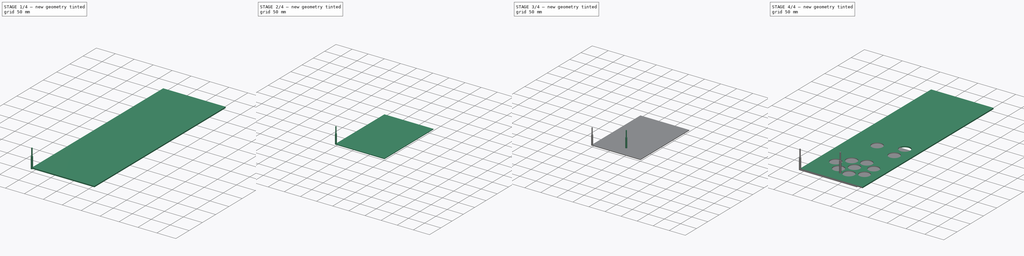
[diagram: build sequence overview — one tinted view per stage of 4, left to right]
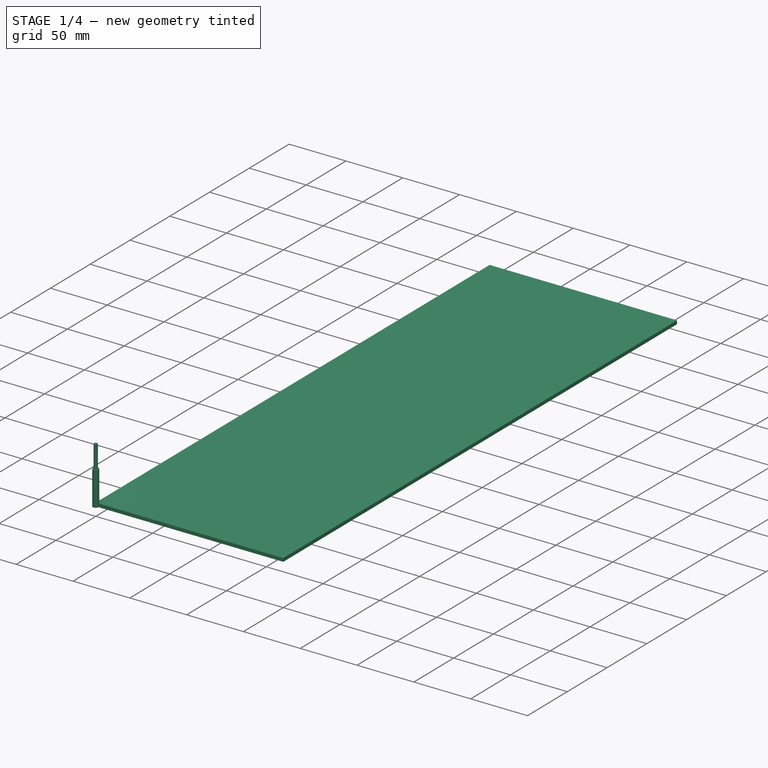
[diagram: stage 1 of 4 — iso view after this stage's code; geometry added in this stage tinted green]
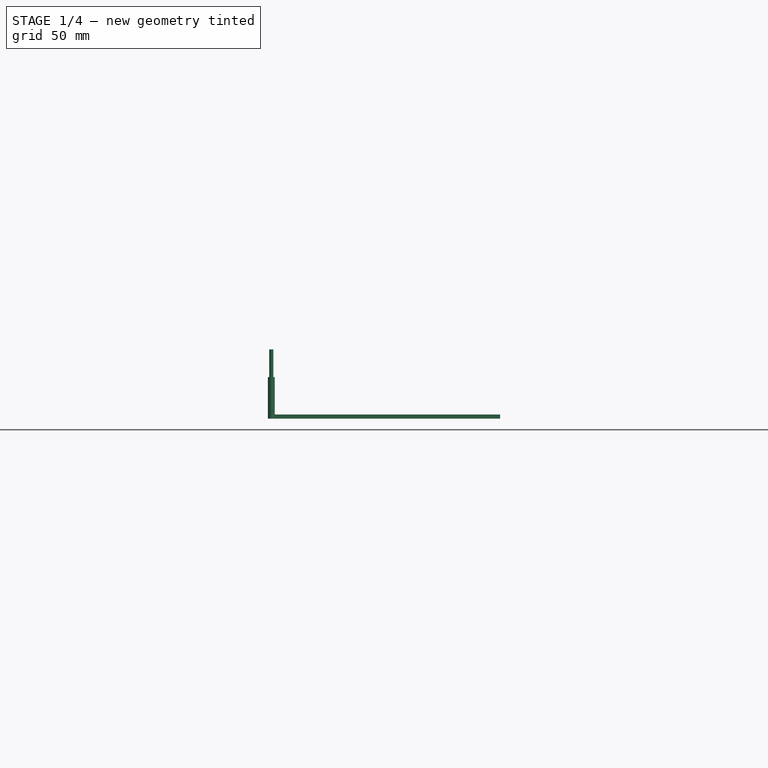
[diagram: stage 1 of 4 — front view after this stage's code; geometry added in this stage tinted green]
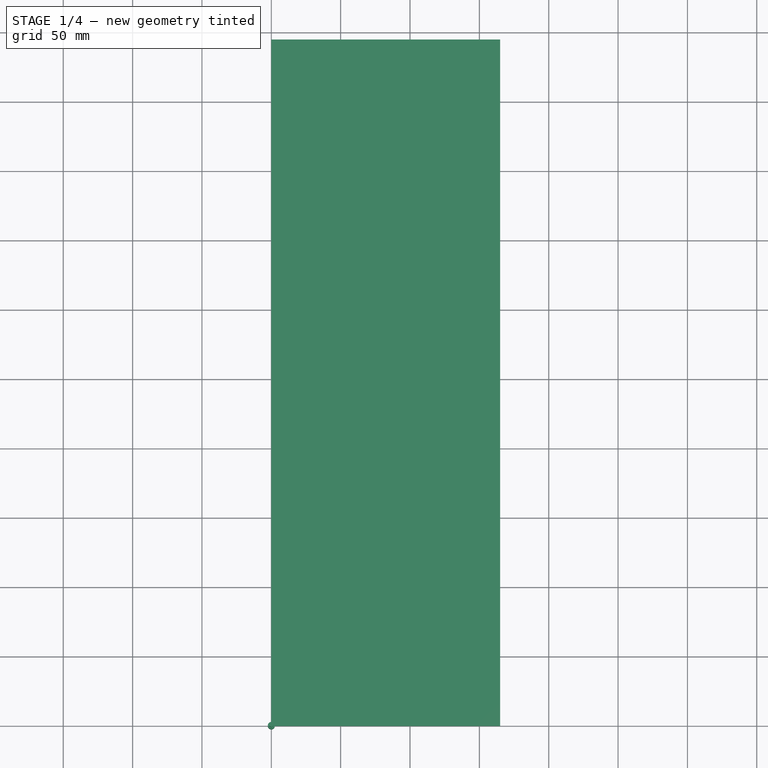
[diagram: stage 1 of 4 — top view after this stage's code; geometry added in this stage tinted green]
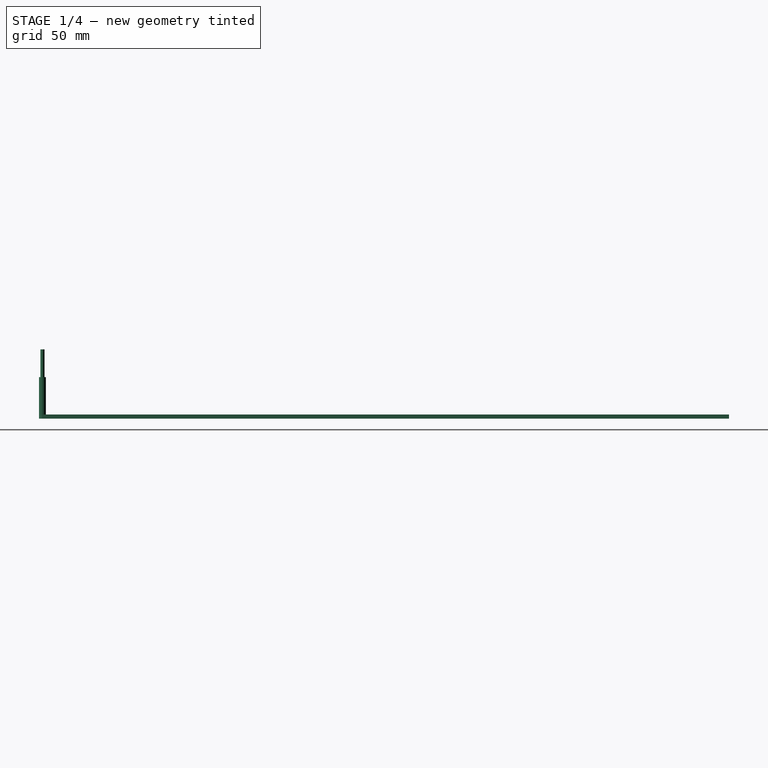
[diagram: stage 1 of 4 — right view after this stage's code; geometry added in this stage tinted green]
FCSTD DOCUMENT  (FreeCAD 0.20R29603 (Git))
Label: 1001_keyboard_500_3_Duo
License: All rights reserved
LicenseURL: http://en.wikipedia.org/wiki/All_rights_reserved
objects: Path::FeaturePython×20, App::DocumentObjectGroup×15, Part::FeaturePython×10, Sketcher::SketchObject×7, App::FeaturePython×5, Part::Part2DObjectPython×5, PartDesign::Pad×1, PartDesign::Pocket×1, PartDesign::Body×1
note: 27 computed .brp shape members not serialized (recipe doc carries the construction recipe); baked Part::Feature solids carry a one-line shape summary decoded from their .brp

FEATURE [Sketcher::SketchObject] Sketch
  FullyConstrained = true
  MapMode = 5
  Support = -> [XY_Plane]
  sketch-geometry (5):
    g0: LineSegment StartX=0 StartY=495 StartZ=0 EndX=165 EndY=495 EndZ=0
    g1: LineSegment StartX=165 StartY=495 StartZ=0 EndX=165 EndY=0 EndZ=0
    g2: LineSegment StartX=165 StartY=0 StartZ=0 EndX=0 EndY=0 EndZ=0
    g3: LineSegment StartX=0 StartY=0 StartZ=0 EndX=0 EndY=247.5 EndZ=0
    g4: LineSegment StartX=0 StartY=247.5 StartZ=0 EndX=0 EndY=495 EndZ=0
  constraints (14):
    c: Coincident(g0,g1)
    c: Coincident(g1,g2)
    c: Horizontal(g0)
    c: Horizontal(g2)
    c: Vertical(g1)
    c: DistanceY(g1,g1) = 495
    c: DistanceX(g0,g0) = 165
    c: Coincident(g3,g2)
    c: Coincident(g4,g0)
    c: Equal(g3,g4)
    c: Vertical(g4)
    c: Vertical(g3)
    c: Coincident(g3,g4)
    c: Coincident(g2,g-1)
FEATURE [PartDesign::Pad] Pad
  AllowMultiFace = false
  Direction = (0,0,1)
  Length = 3
  Length2 = 100
  Profile = -> Sketch
  ReferenceAxis = -> Sketch [N_Axis]
  Type = 0
FEATURE [PartDesign::Body] Body
  Group = -> [Sketch,Pad,Sketch001,Pocket]
  Origin = -> Origin
  Tip = -> Pocket
FEATURE [Sketcher::SketchObject] Sketch002  label="ButtonsLayoutSquare"
  FullyConstrained = false
  sketch-geometry (27):
    g0: LineSegment StartX=48.2843 StartY=48.2843 StartZ=0 EndX=20 EndY=76.5685 EndZ=0
    g1: LineSegment StartX=20 StartY=76.5685 StartZ=0 EndX=48.2843 EndY=104.853 EndZ=0
    g2: LineSegment StartX=48.2843 StartY=104.853 StartZ=0 EndX=76.5685 EndY=76.5685 EndZ=0
    g3: LineSegment StartX=76.5685 StartY=76.5685 StartZ=0 EndX=48.2843 EndY=48.2843 EndZ=0
    g4: Circle CenterX=48.2843 CenterY=104.853 CenterZ=0 NormalX=0 NormalY=0 NormalZ=1 AngleXU=0 Radius=15
    g5: Circle CenterX=76.5685 CenterY=76.5685 CenterZ=0 NormalX=0 NormalY=0 NormalZ=1 AngleXU=0 Radius=15
    g6: Circle CenterX=48.2843 CenterY=48.2843 CenterZ=0 NormalX=0 NormalY=0 NormalZ=1 AngleXU=0 Radius=15
    g7: Circle CenterX=20 CenterY=76.5685 CenterZ=0 NormalX=0 NormalY=0 NormalZ=1 AngleXU=0 Radius=15
    g8: LineSegment StartX=20 StartY=76.5685 StartZ=0 EndX=76.5685 EndY=76.5685 EndZ=0
    g9: LineSegment StartX=48.2843 StartY=104.853 StartZ=0 EndX=76.5685 EndY=133.137 EndZ=0
    g10: LineSegment StartX=76.5685 StartY=76.5685 StartZ=0 EndX=104.853 EndY=104.853 EndZ=0
    g11: LineSegment StartX=104.853 StartY=104.853 StartZ=0 EndX=76.5685 EndY=133.137 EndZ=0
    g12: LineSegment StartX=76.5685 StartY=76.5685 StartZ=0 EndX=104.853 EndY=48.2843 EndZ=0
    g13: LineSegment StartX=48.2843 StartY=48.2843 StartZ=0 EndX=76.5685 EndY=20 EndZ=0
    g14: LineSegment StartX=76.5685 StartY=20 StartZ=0 EndX=104.853 EndY=48.2843 EndZ=0
    g15: Circle CenterX=76.5685 CenterY=133.137 CenterZ=0 NormalX=0 NormalY=0 NormalZ=1 AngleXU=0 Radius=15
    g16: Circle CenterX=104.853 CenterY=104.853 CenterZ=0 NormalX=0 NormalY=0 NormalZ=1 AngleXU=0 Radius=15
    g17: Circle CenterX=104.853 CenterY=48.2843 CenterZ=0 NormalX=0 NormalY=0 NormalZ=1 AngleXU=0 Radius=15
    g18: Circle CenterX=76.5685 CenterY=20 CenterZ=0 NormalX=0 NormalY=0 NormalZ=1 AngleXU=0 Radius=15
    g19: LineSegment StartX=104.853 StartY=104.853 StartZ=0 EndX=124.853 EndY=104.853 EndZ=0
    g20: LineSegment StartX=76.5685 StartY=133.137 StartZ=0 EndX=76.5685 EndY=153.137 EndZ=0
    g21: LineSegment StartX=20 StartY=76.5685 StartZ=0 EndX=-3.6e-15 EndY=76.5685 EndZ=0
    g22: LineSegment StartX=76.5685 StartY=20 StartZ=0 EndX=76.5685 EndY=0 EndZ=0
    g23: LineSegment StartX=0 StartY=153.137 StartZ=0 EndX=124.853 EndY=153.137 EndZ=0
    g24: LineSegment StartX=124.853 StartY=153.137 StartZ=0 EndX=124.853 EndY=0 EndZ=0
    g25: LineSegment StartX=124.853 StartY=0 StartZ=0 EndX=0 EndY=0 EndZ=0
    g26: LineSegment StartX=0 StartY=0 StartZ=0 EndX=0 EndY=153.137 EndZ=0
  constraints (68):
    c: Coincident(g1,g0)
    c: Coincident(g2,g1)
    c: Coincident(g3,g2)
    c: Coincident(g3,g0)
    c: Perpendicular(g0,g3)
    c: Perpendicular(g0,g1)
    c: Equal(g0,g1)
    c: Equal(g2,g3)
    c: Coincident(g4,g1)
    c: Diameter(g4) = 30
    c: Coincident(g5,g2)
    c: Coincident(g6,g0)
    c: Coincident(g7,g0)
    c: Equal(g7,g4)
    c: Equal(g7,g6)
    c: Equal(g6,g5)
    c: Distance(g2) = 40
    c: Coincident(g8,g7)
    c: Coincident(g8,g5)
    c: Horizontal(g8)
    c: Coincident(g9,g4)
    c: Coincident(g10,g5)
    c: Coincident(g11,g10)
    c: Coincident(g11,g9)
    c: Coincident(g12,g5)
    c: Coincident(g13,g6)
    c: Coincident(g14,g13)
    c: Coincident(g14,g12)
    c: Equal(g9,g10)
    c: Equal(g10,g11)
    c: Equal(g11,g12)
    c: Equal(g12,g14)
    c: Equal(g14,g13)
    c: Equal(g13,g2)
    c: Parallel(g10,g3)
    c: Parallel(g12,g2)
    c: Coincident(g15,g9)
    c: Coincident(g16,g10)
    c: Coincident(g17,g12)
    c: Coincident(g18,g13)
    c: Equal(g18,g16)
    c: Equal(g16,g17)
    c: Equal(g17,g15)
    c: Equal(g15,g4)
    c: Coincident(g19,g16)
    c: Horizontal(g19)
    c: Coincident(g20,g15)
    c: Coincident(g21,g7)
    c: Coincident(g22,g18)
    c: Vertical(g22)
    c: Vertical(g20)
    c: Horizontal(g21)
    c: Coincident(g23,g24)
    c: Coincident(g24,g25)
    c: Coincident(g25,g26)
    c: Coincident(g26,g23)
    c: Horizontal(g23)
    c: Horizontal(g25)
    c: Vertical(g24)
    c: Vertical(g26)
    c: PointOnObject(g21,g26)
    c: PointOnObject(g20,g23)
    c: PointOnObject(g19,g24)
    c: PointOnObject(g22,g25)
    c: Equal(g19,g20)
    c: Equal(g20,g21)
    c: Equal(g21,g22)
    c: DistanceY(g22,g22) = 20
FEATURE [Sketcher::SketchObject] Sketch003  label="JoystickLayout4Way"
  FullyConstrained = false
  sketch-geometry (36):
    g0: LineSegment StartX=4.98994 StartY=62.4194 StartZ=0 EndX=99.9899 EndY=62.4194 EndZ=0
    g1: LineSegment StartX=99.9899 StartY=62.4194 StartZ=0 EndX=99.9899 EndY=2.41944 EndZ=0
    g2: LineSegment StartX=99.9899 StartY=2.41944 StartZ=0 EndX=52.4899 EndY=2.41944 EndZ=0
    g3: LineSegment StartX=52.4899 StartY=2.41944 StartZ=0 EndX=4.98994 EndY=2.41944 EndZ=0
    g4: LineSegment StartX=4.98994 StartY=2.41944 StartZ=0 EndX=4.98994 EndY=32.4194 EndZ=0
    g5: LineSegment StartX=4.98994 StartY=32.4194 StartZ=0 EndX=4.98994 EndY=62.4194 EndZ=0
    g6: LineSegment StartX=4.98994 StartY=32.4194 StartZ=0 EndX=52.4899 EndY=32.4194 EndZ=0
    g7: Circle CenterX=52.4899 CenterY=32.4194 CenterZ=0 NormalX=0 NormalY=0 NormalZ=1 AngleXU=0 Radius=12.5
    g8: LineSegment StartX=52.4899 StartY=32.4194 StartZ=0 EndX=99.9899 EndY=32.4194 EndZ=0
    g9: ArcOfCircle CenterX=10.4899 CenterY=55.9194 CenterZ=0 NormalX=0 NormalY=0 NormalZ=1 AngleXU=0 Radius=2.6 StartAngle=1.5708 EndAngle=4.71239
    g10: ArcOfCircle CenterX=13.0899 CenterY=55.9194 CenterZ=0 NormalX=0 NormalY=0 NormalZ=1 AngleXU=0 Radius=2.6 StartAngle=4.71239 EndAngle=7.85398
    g11: LineSegment StartX=10.4899 StartY=53.3194 StartZ=0 EndX=13.0899 EndY=53.3194 EndZ=0
    g12: LineSegment StartX=13.0899 StartY=58.5194 StartZ=0 EndX=10.4899 EndY=58.5194 EndZ=0
    g13: LineSegment StartX=10.4899 StartY=58.5194 StartZ=0 EndX=7.88994 EndY=58.5194 EndZ=0
    g14: LineSegment StartX=13.0899 StartY=58.5194 StartZ=0 EndX=15.6899 EndY=58.5194 EndZ=0
    g15: ArcOfCircle CenterX=94.4899 CenterY=55.9194 CenterZ=0 NormalX=0 NormalY=0 NormalZ=1 AngleXU=0 Radius=2.6 StartAngle=4.71239 EndAngle=7.85398
    g16: LineSegment StartX=94.4899 StartY=58.5194 StartZ=0 EndX=91.8899 EndY=58.5194 EndZ=0
    g17: LineSegment StartX=91.8899 StartY=53.3194 StartZ=0 EndX=94.4899 EndY=53.3194 EndZ=0
    g18: ArcOfCircle CenterX=91.8899 CenterY=55.9194 CenterZ=0 NormalX=0 NormalY=0 NormalZ=1 AngleXU=0 Radius=2.6 StartAngle=1.5708 EndAngle=4.71239
    g19: LineSegment StartX=10.4899 StartY=6.31944 StartZ=0 EndX=13.0899 EndY=6.31944 EndZ=0
    g20: ArcOfCircle CenterX=13.0899 CenterY=8.91944 CenterZ=0 NormalX=0 NormalY=0 NormalZ=1 AngleXU=0 Radius=2.6 StartAngle=4.71239 EndAngle=7.85398
    g21: LineSegment StartX=13.0899 StartY=11.5194 StartZ=0 EndX=10.4899 EndY=11.5194 EndZ=0
    g22: ArcOfCircle CenterX=10.4899 CenterY=8.91944 CenterZ=0 NormalX=0 NormalY=0 NormalZ=1 AngleXU=0 Radius=2.6 StartAngle=1.5708 EndAngle=4.71239
    g23: ArcOfCircle CenterX=91.8899 CenterY=8.91944 CenterZ=0 NormalX=0 NormalY=0 NormalZ=1 AngleXU=0 Radius=2.6 StartAngle=1.5708 EndAngle=4.71239
    g24: LineSegment StartX=91.8899 StartY=6.31944 StartZ=0 EndX=94.4899 EndY=6.31944 EndZ=0
    g25: LineSegment StartX=94.4899 StartY=11.5194 StartZ=0 EndX=91.8899 EndY=11.5194 EndZ=0
    g26: ArcOfCircle CenterX=94.4899 CenterY=8.91944 CenterZ=0 NormalX=0 NormalY=0 NormalZ=1 AngleXU=0 Radius=2.6 StartAngle=4.71239 EndAngle=7.85398
    g27: LineSegment StartX=52.4899 StartY=2.41944 StartZ=0 EndX=52.4899 EndY=7.02452 EndZ=0
    g28: LineSegment StartX=4.98994 StartY=32.4194 StartZ=0 EndX=9.59502 EndY=32.4194 EndZ=0
    g29: LineSegment StartX=99.9899 StartY=32.4194 StartZ=0 EndX=95.3849 EndY=32.4194 EndZ=0
    g30: LineSegment StartX=52.4899 StartY=62.4194 StartZ=0 EndX=52.4899 EndY=57.8144 EndZ=0
    g31: LineSegment StartX=99.9899 StartY=62.4194 StartZ=0 EndX=87.9899 EndY=62.4194 EndZ=0
    g32: LineSegment StartX=87.9899 StartY=62.4194 StartZ=0 EndX=87.9899 EndY=67.4194 EndZ=0
    g33: LineSegment StartX=87.9899 StartY=67.4194 StartZ=0 EndX=67.9899 EndY=67.4194 EndZ=0
    g34: LineSegment StartX=67.9899 StartY=67.4194 StartZ=0 EndX=67.9899 EndY=62.4194 EndZ=0
    g35: LineSegment StartX=67.9899 StartY=62.4194 StartZ=0 EndX=4.98994 EndY=62.4194 EndZ=0
  constraints (96):
    c: Coincident(g0,g1)
    c: Coincident(g1,g2)
    c: Horizontal(g0)
    c: Horizontal(g2)
    c: Vertical(g1)
    c: DistanceY(g1,g1) = 60
    c: DistanceX(g0,g0) = 95
    c: Coincident(g3,g2)
    c: Coincident(g4,g3)
    c: Coincident(g5,g4)
    c: Coincident(g5,g0)
    c: Vertical(g5)
    c: Vertical(g4)
    c: Horizontal(g3)
    c: Equal(g3,g2)
    c: Equal(g4,g5)
    c: Coincident(g6,g4)
    c: Horizontal(g6)
    c: Coincident(g7,g6)
    c: Coincident(g8,g6)
    c: PointOnObject(g8,g1)
    c: Horizontal(g8)
    c: Equal(g8,g6)
    c: Diameter(g7) = 25
    c: Tangent(g9,g11) = -1.5708
    c: Tangent(g11,g10) = -1.5708
    c: Tangent(g10,g12) = -1.5708
    c: Tangent(g12,g9) = -1.5708
    c: Equal(g9,g10)
    c: Horizontal(g11)
    c: DistanceY(g9,g0) = 6.5
    c: DistanceY(g10,g10) = 5.2
    c: Coincident(g13,g9)
    c: Horizontal(g13)
    c: Coincident(g14,g10)
    c: Horizontal(g14)
    c: Equal(g14,g13)
    c: DistanceX(g13,g13) = 2.6
    c: DistanceX(g13,g14) = 7.8
    c: Tangent(g18,g17) = -1.5708
    c: Tangent(g17,g15) = -1.5708
    c: Tangent(g15,g16) = -1.5708
    c: Tangent(g16,g18) = -1.5708
    c: Equal(g18,g15)
    c: Horizontal(g17)
    c: Equal(g10,g15) = 5.2
    c: Tangent(g22,g19) = -1.5708
    c: Tangent(g19,g20) = -1.5708
    c: Tangent(g20,g21) = -1.5708
    c: Tangent(g21,g22) = -1.5708
    c: Equal(g22,g20)
    c: Horizontal(g19)
    c: Equal(g10,g20) = 5.2
    c: Tangent(g23,g24) = -1.5708
    c: Tangent(g24,g26) = -1.5708
    c: Tangent(g26,g25) = -1.5708
    c: Tangent(g25,g23) = -1.5708
    c: Equal(g23,g26)
    c: Horizontal(g24)
    c: Equal(g10,g26) = 5.2
    c: Equal(g21,g16)
    c: Equal(g16,g25)
    c: Equal(g25,g11)
    c: DistanceY(g3,g22) = 6.5
    c: Vertical(g21,g9)
    c: DistanceX(g9,g6) = 42
    c: Horizontal(g23,g20)
    c: Vertical(g23,g17)
    c: DistanceX(g9,g15) = 84
    c: Horizontal(g10,g16)
    c: Coincident(g27,g2)
    c: Vertical(g27)
    c: Coincident(g28,g4)
    c: PointOnObject(g28,g6)
    c: Equal(g28,g27)
    c: Coincident(g29,g8)
    c: PointOnObject(g29,g8)
    c: Equal(g29,g27)
    c: PointOnObject(g30,g0)
    c: Vertical(g30)
    c: Equal(g30,g29)
    c: Vertical(g30,g27)
    c: Coincident(g31,g1)
    c: PointOnObject(g31,g0)
    c: Coincident(g32,g31)
    c: Vertical(g32)
    c: Coincident(g33,g32)
    c: Horizontal(g33)
    c: Coincident(g34,g33)
    c: PointOnObject(g34,g0)
    c: Vertical(g34)
    c: Coincident(g35,g34)
    c: Coincident(g35,g5)
    c: DistanceX(g32,g1) = 12
    c: DistanceX(g33,g33) = 20
    c: DistanceY(g34,g34) = 5
FEATURE [App::FeaturePython] SetupSheet  # Path/CAM operation (typed FeaturePython)
  ClearanceHeightExpression = OpStockZMax+SetupSheet.ClearanceHeightOffset
  ClearanceHeightOffset = 5
  CoolantMode = 0
  CoolantModes = None | Flood | Mist
  FinalDepthExpression = OpFinalDepth
  HorizRapid = 0
  SafeHeightExpression = OpStockZMax+SetupSheet.SafeHeightOffset
  SafeHeightOffset = 3
  StartDepthExpression = OpStartDepth
  StepDownExpression = OpToolDiameter
  VertRapid = 0
FEATURE [Part::Part2DObjectPython] Clone2D  label="Model-ButtonsLayoutSquare"  # Draft 2D object (typed FeaturePython)
  Fuse = false
  Objects = -> [Sketch002]
  PathResource = Model
  Scale = (1,1,1)
FEATURE [App::DocumentObjectGroup] Model
  Group = -> [Clone2D]
FEATURE [Part::FeaturePython] ToolBit  label="Endmill"  # Path/CAM toolbit (typed FeaturePython)
  BitPropertyNames = Chipload | CuttingEdgeHeight | Diameter | Flutes | Length | Material | ShankDiameter | SpindleDirection
  BitShape = <path> 0.20.0/Mod\Path\Tools\Shape\endmill.fcstd
  Chipload = 0
  CuttingEdgeHeight = 30
  Diameter = 5
  Flutes = 0
  Length = 50
  Material = 0
  ShankDiameter = 3
  ShapeName = endmill
  SpindleDirection = 0
FEATURE [Path::FeaturePython] Engrave005  # Path/CAM operation (typed FeaturePython)
  Active = true
  ClearanceHeight = 6
  CoolantMode = 0
  CycleTime = Cycletime Error
  FinalDepth = -5
  OpFinalDepth = -5
  OpStartDepth = 0
  OpStockZMax = 1
  OpStockZMin = -1
  OpToolDiameter = 5
  SafeHeight = 4
  StartDepth = 0
  StartVertex = 0
  StepDown = 5
  ToolController = -> TC__Default_Tool
  expr: ClearanceHeight = OpStockZMax + SetupSheet.ClearanceHeightOffset
  expr: FinalDepth = OpFinalDepth
  expr: SafeHeight = OpStockZMax + SetupSheet.SafeHeightOffset
  expr: StartDepth = OpStartDepth
  expr: StepDown = OpToolDiameter
FEATURE [Path::FeaturePython] Engrave006  # Path/CAM operation (typed FeaturePython)
  Active = true
  ClearanceHeight = 6
  CoolantMode = 0
  CycleTime = Cycletime Error
  FinalDepth = -5
  OpFinalDepth = -5
  OpStartDepth = 0
  OpStockZMax = 1
  OpStockZMin = -1
  OpToolDiameter = 5
  SafeHeight = 4
  StartDepth = 0
  StartVertex = 0
  StepDown = 5
  ToolController = -> TC__Default_Tool
  expr: ClearanceHeight = OpStockZMax + SetupSheet.ClearanceHeightOffset
  expr: FinalDepth = OpFinalDepth
  expr: SafeHeight = OpStockZMax + SetupSheet.SafeHeightOffset
  expr: StartDepth = OpStartDepth
  expr: StepDown = OpToolDiameter
FEATURE [Path::FeaturePython] Engrave007  # Path/CAM operation (typed FeaturePython)
  Active = true
  ClearanceHeight = 6
  CoolantMode = 0
  CycleTime = Cycletime Error
  FinalDepth = -5
  OpFinalDepth = -5
  OpStartDepth = 0
  OpStockZMax = 1
  OpStockZMin = -1
  OpToolDiameter = 5
  SafeHeight = 4
  StartDepth = 0
  StartVertex = 0
  StepDown = 5
  ToolController = -> TC__Default_Tool003
  expr: ClearanceHeight = OpStockZMax + SetupSheet003.ClearanceHeightOffset
  expr: FinalDepth = OpFinalDepth
  expr: SafeHeight = OpStockZMax + SetupSheet003.SafeHeightOffset
  expr: StartDepth = OpStartDepth
  expr: StepDown = OpToolDiameter
FEATURE [App::DocumentObjectGroup] Operations003
  Group = -> [Engrave007]
FEATURE [Path::FeaturePython] Job003  label="PCB001"  # Path/CAM operation (typed FeaturePython)
  CycleTime = 00:00:00
  Fixtures = G54
  GeometryTolerance = 0.01
  JobType = 0
  Model = -> Model003
  Operations = -> Operations003
  OrderOutputBy = 0
  PostProcessor = 1
  SetupSheet = -> SetupSheet003
  SplitOutput = false
  Stock = -> Stock003
  Tools = -> Tools003
FEATURE [App::FeaturePython] SetupSheet004  # Path/CAM operation (typed FeaturePython)
  ClearanceHeightExpression = OpStockZMax+SetupSheet004.ClearanceHeightOffset
  ClearanceHeightOffset = 5
  CoolantMode = 0
  CoolantModes = None | Flood | Mist
  FinalDepthExpression = OpFinalDepth
  HorizRapid = 0
  SafeHeightExpression = OpStockZMax+SetupSheet004.SafeHeightOffset
  SafeHeightOffset = 3
  StartDepthExpression = OpStartDepth
  StepDownExpression = OpToolDiameter
  VertRapid = 0
FEATURE [Part::Part2DObjectPython] Clone2D004  label="Model-PCB Text"  # Draft 2D object (typed FeaturePython)
  Fuse = false
  Objects = -> [Sketch005]
  PathResource = Model
  Scale = (1,1,1)
FEATURE [App::DocumentObjectGroup] Model004
  Group = -> [Clone2D004]
FEATURE [Part::FeaturePython] ToolBit004  label="Endmill004"  # Path/CAM toolbit (typed FeaturePython)
  BitPropertyNames = Chipload | CuttingEdgeHeight | Diameter | Flutes | Length | Material | ShankDiameter | SpindleDirection
  BitShape = <path> 0.20.0/Mod\Path\Tools\Shape\endmill.fcstd
  Chipload = 0
  CuttingEdgeHeight = 30
  Diameter = 5
  Flutes = 0
  Length = 50
  Material = 0
  ShankDiameter = 3
  ShapeName = endmill
  SpindleDirection = 0
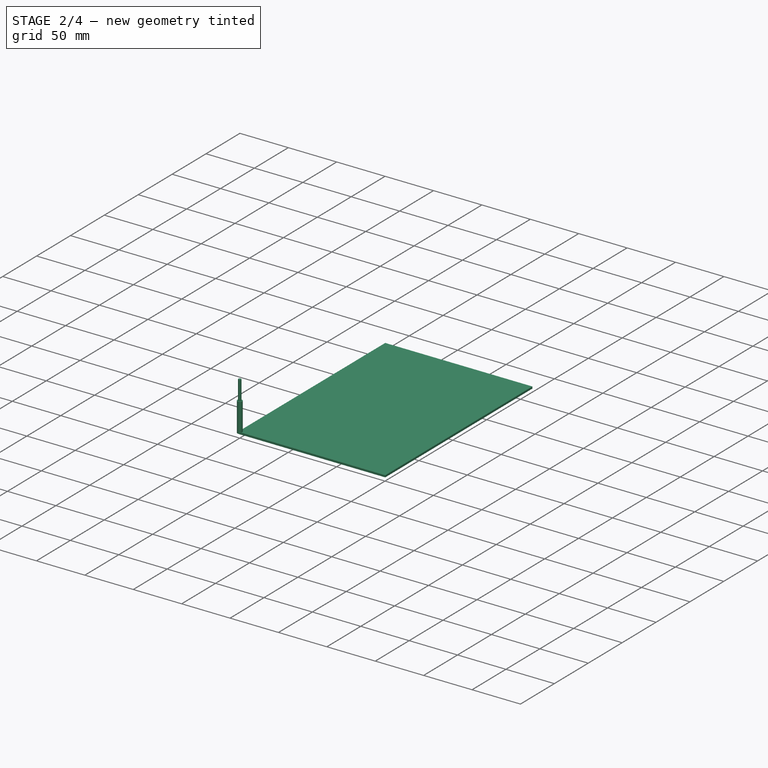
[diagram: stage 2 of 4 — iso view after this stage's code; geometry added in this stage tinted green]
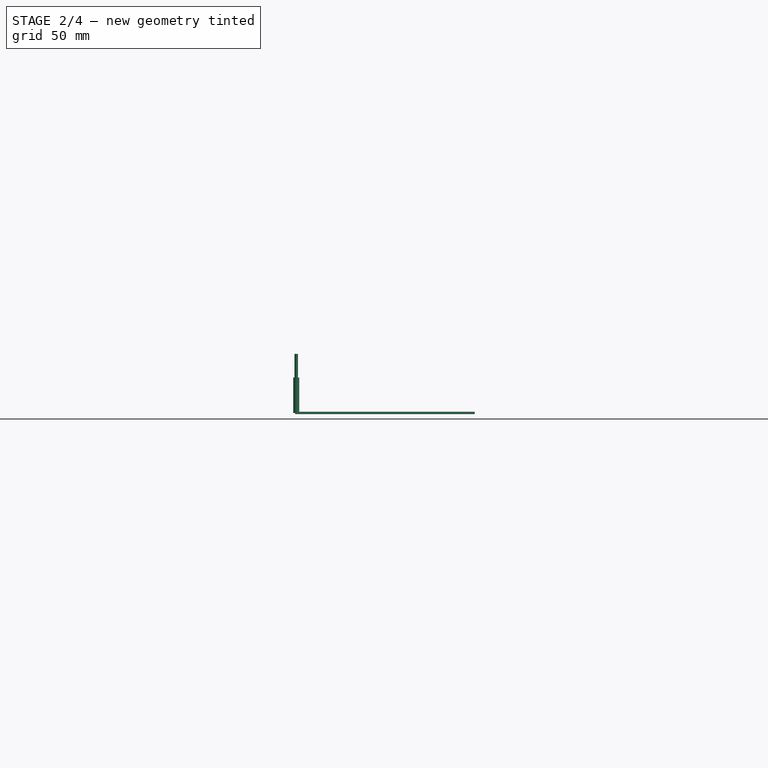
[diagram: stage 2 of 4 — front view after this stage's code; geometry added in this stage tinted green]
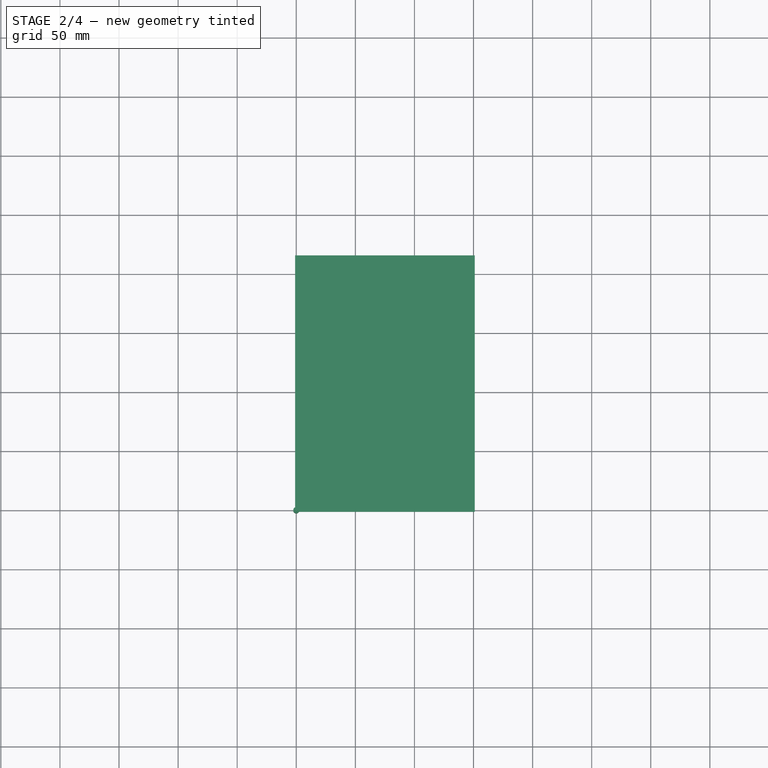
[diagram: stage 2 of 4 — top view after this stage's code; geometry added in this stage tinted green]
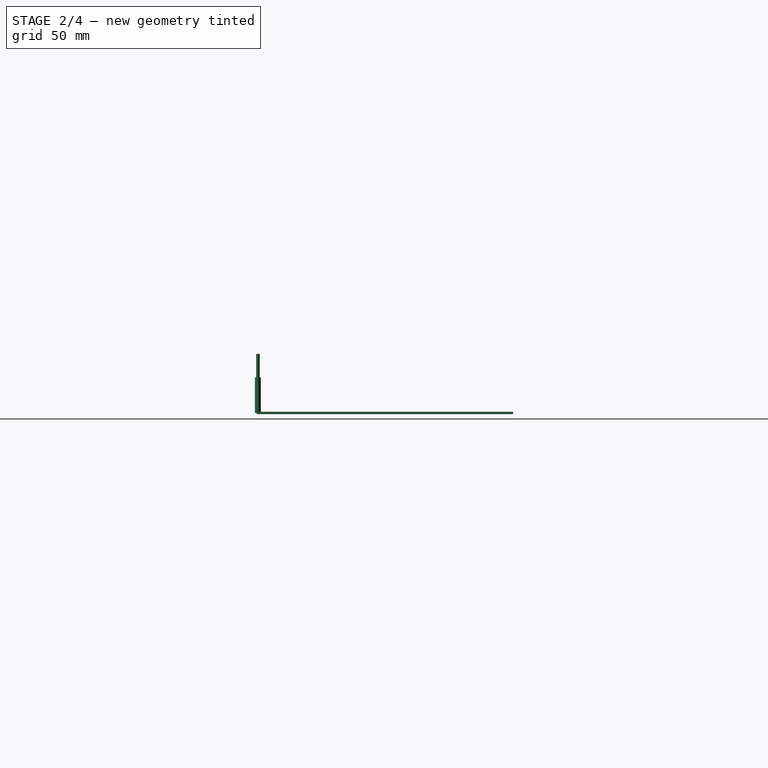
[diagram: stage 2 of 4 — right view after this stage's code; geometry added in this stage tinted green]
FEATURE [Path::FeaturePython] Engrave004  # Path/CAM operation (typed FeaturePython)
  Active = true
  ClearanceHeight = 6
  CoolantMode = 0
  CycleTime = Cycletime Error
  FinalDepth = -5
  OpFinalDepth = -5
  OpStartDepth = 0
  OpStockZMax = 1
  OpStockZMin = -1
  OpToolDiameter = 5
  SafeHeight = 4
  StartDepth = 0
  StartVertex = 0
  StepDown = 5
  ToolController = -> TC__Default_Tool002
  expr: ClearanceHeight = OpStockZMax + SetupSheet002.ClearanceHeightOffset
  expr: FinalDepth = OpFinalDepth
  expr: SafeHeight = OpStockZMax + SetupSheet002.SafeHeightOffset
  expr: StartDepth = OpStartDepth
  expr: StepDown = OpToolDiameter
FEATURE [App::DocumentObjectGroup] Operations002
  Group = -> [Engrave004]
FEATURE [Path::FeaturePython] Job002  label="Ring001"  # Path/CAM operation (typed FeaturePython)
  CycleTime = 00:00:00
  Fixtures = G54
  GeometryTolerance = 0.01
  JobType = 0
  Model = -> Model002
  Operations = -> Operations002
  OrderOutputBy = 0
  PostProcessor = 1
  SetupSheet = -> SetupSheet002
  SplitOutput = false
  Stock = -> Stock002
  Tools = -> Tools002
FEATURE [App::FeaturePython] SetupSheet003  # Path/CAM operation (typed FeaturePython)
  ClearanceHeightExpression = OpStockZMax+SetupSheet003.ClearanceHeightOffset
  ClearanceHeightOffset = 5
  CoolantMode = 0
  CoolantModes = None | Flood | Mist
  FinalDepthExpression = OpFinalDepth
  HorizRapid = 0
  SafeHeightExpression = OpStockZMax+SetupSheet003.SafeHeightOffset
  SafeHeightOffset = 3
  StartDepthExpression = OpStartDepth
  StepDownExpression = OpToolDiameter
  VertRapid = 0
FEATURE [Part::Part2DObjectPython] Clone2D003  label="Model-PCB"  # Draft 2D object (typed FeaturePython)
  Fuse = false
  Objects = -> [Sketch004]
  PathResource = Model
  Scale = (1,1,1)
FEATURE [App::DocumentObjectGroup] Model003
  Group = -> [Clone2D003]
FEATURE [Part::FeaturePython] ToolBit003  label="Endmill003"  # Path/CAM toolbit (typed FeaturePython)
  BitPropertyNames = Chipload | CuttingEdgeHeight | Diameter | Flutes | Length | Material | ShankDiameter | SpindleDirection
  BitShape = <path> 0.20.0/Mod\Path\Tools\Shape\endmill.fcstd
  Chipload = 0
  CuttingEdgeHeight = 30
  Diameter = 5
  Flutes = 0
  Length = 50
  Material = 0
  ShankDiameter = 3
  ShapeName = endmill
  SpindleDirection = 0
FEATURE [Path::FeaturePython] TC__Default_Tool003  label="TC: Default Tool003"  # Path/CAM operation (typed FeaturePython)
  HorizFeed = 0
  HorizRapid = 0
  SpindleDir = 0
  SpindleSpeed = 0
  Tool = -> ToolBit003
  ToolNumber = 1
  VertFeed = 0
  VertRapid = 0
  expr: HorizRapid = SetupSheet003.HorizRapid
  expr: VertRapid = SetupSheet003.VertRapid
FEATURE [App::DocumentObjectGroup] Tools003
  Group = -> [TC__Default_Tool003]
FEATURE [Part::FeaturePython] Stock003  # WARN: FeaturePython — macro-defined, semantics opaque (R4)
  Base = -> Model003
  ExtXneg = 1
  ExtXpos = 1
  ExtYneg = 1
  ExtYpos = 1
  ExtZneg = 1
  ExtZpos = 1
  StockType = FromBase
FEATURE [Path::FeaturePython] TC__Default_Tool004  label="TC: Default Tool004"  # Path/CAM operation (typed FeaturePython)
  HorizFeed = 0
  HorizRapid = 0
  SpindleDir = 0
  SpindleSpeed = 0
  Tool = -> ToolBit004
  ToolNumber = 1
  VertFeed = 0
  VertRapid = 0
  expr: HorizRapid = SetupSheet004.HorizRapid
  expr: VertRapid = SetupSheet004.VertRapid
FEATURE [App::DocumentObjectGroup] Tools004
  Group = -> [TC__Default_Tool004]
FEATURE [Part::FeaturePython] Stock004  # WARN: FeaturePython — macro-defined, semantics opaque (R4)
  Base = -> Model004
  ExtXneg = 1
  ExtXpos = 1
  ExtYneg = 1
  ExtYpos = 1
  ExtZneg = 1
  ExtZpos = 1
  Placement = pos=(40.5235,5.81363,0) rot=(0,0,1;0rad)
  StockType = FromBase
FEATURE [Path::FeaturePython] Engrave008  # Path/CAM operation (typed FeaturePython)
  Active = true
  ClearanceHeight = 6
  CoolantMode = 0
  CycleTime = Cycletime Error
  FinalDepth = -5
  OpFinalDepth = -5
  OpStartDepth = 0
  OpStockZMax = 1
  OpStockZMin = -1
  OpToolDiameter = 5
  SafeHeight = 4
  StartDepth = 0
  StartVertex = 0
  StepDown = 5
  ToolController = -> TC__Default_Tool
  expr: ClearanceHeight = OpStockZMax + SetupSheet.ClearanceHeightOffset
  expr: FinalDepth = OpFinalDepth
  expr: SafeHeight = OpStockZMax + SetupSheet.SafeHeightOffset
  expr: StartDepth = OpStartDepth
  expr: StepDown = OpToolDiameter
FEATURE [App::DocumentObjectGroup] Operations
  Group = -> [Engrave,Engrave002,Engrave003,Engrave005,Engrave006,Engrave008]
FEATURE [Path::FeaturePython] Job  label="JobButtons"  # Path/CAM operation (typed FeaturePython)
  CycleTime = 00:00:00
  Fixtures = G54
  GeometryTolerance = 0.01
  JobType = 0
  Model = -> Model
  Operations = -> Operations
  OrderOutputBy = 0
  PostProcessor = 1
  SetupSheet = -> SetupSheet
  SplitOutput = false
  Stock = -> Stock
  Tools = -> Tools
FEATURE [Path::FeaturePython] Engrave009  # Path/CAM operation (typed FeaturePython)
  Active = true
  ClearanceHeight = 6
  CoolantMode = 0
  CycleTime = Cycletime Error
  FinalDepth = -5
  OpFinalDepth = -5
  OpStartDepth = 0
  OpStockZMax = 1
  OpStockZMin = -1
  OpToolDiameter = 5
  SafeHeight = 4
  StartDepth = 0
  StartVertex = 0
  StepDown = 5
  ToolController = -> TC__Default_Tool004
  expr: ClearanceHeight = OpStockZMax + SetupSheet004.ClearanceHeightOffset
  expr: FinalDepth = OpFinalDepth
  expr: SafeHeight = OpStockZMax + SetupSheet004.SafeHeightOffset
  expr: StartDepth = OpStartDepth
  expr: StepDown = OpToolDiameter
FEATURE [App::DocumentObjectGroup] Operations004
  Group = -> [Engrave009]
FEATURE [Path::FeaturePython] Job004  label="PCB_Text"  # Path/CAM operation (typed FeaturePython)
  CycleTime = 00:00:00
  Fixtures = G54
  GeometryTolerance = 0.01
  JobType = 0
  Model = -> Model004
  Operations = -> Operations004
  OrderOutputBy = 0
  PostProcessor = 1
  SetupSheet = -> SetupSheet004
  SplitOutput = false
  Stock = -> Stock004
  Tools = -> Tools004
note: 5 file-system paths scrubbed to <path> (originals preserved in the JSON sidecar)
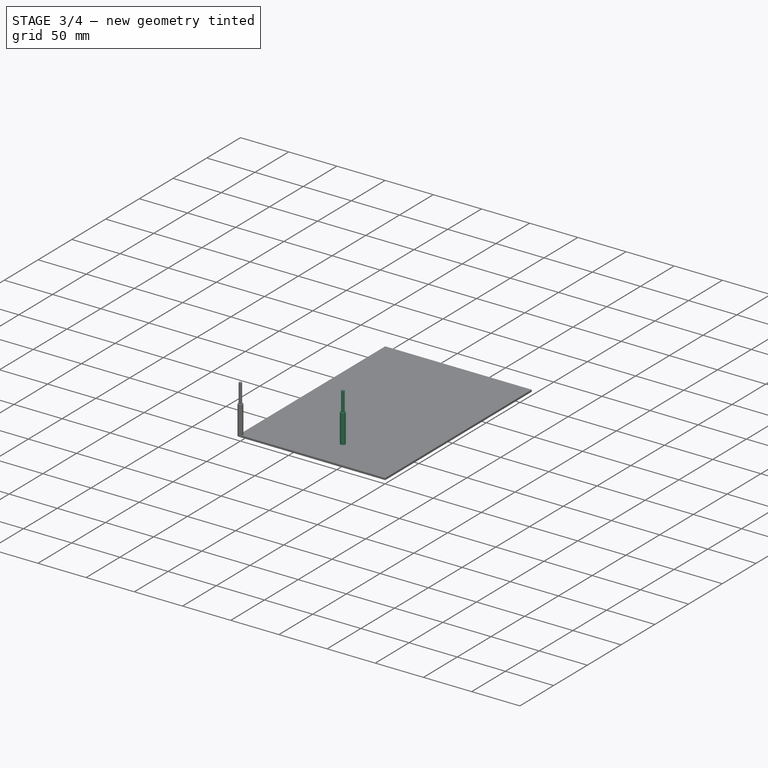
[diagram: stage 3 of 4 — iso view after this stage's code; geometry added in this stage tinted green]
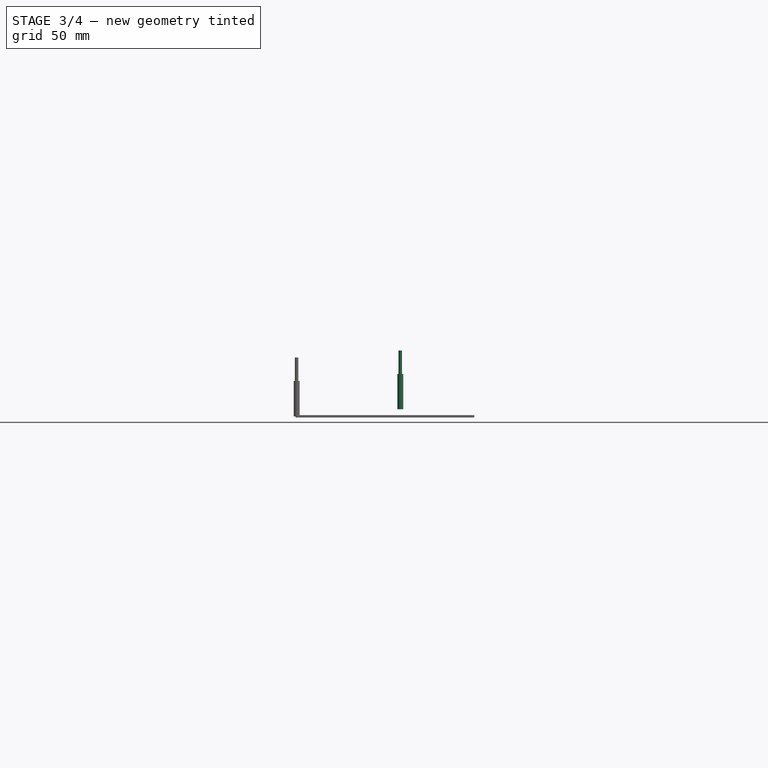
[diagram: stage 3 of 4 — front view after this stage's code; geometry added in this stage tinted green]
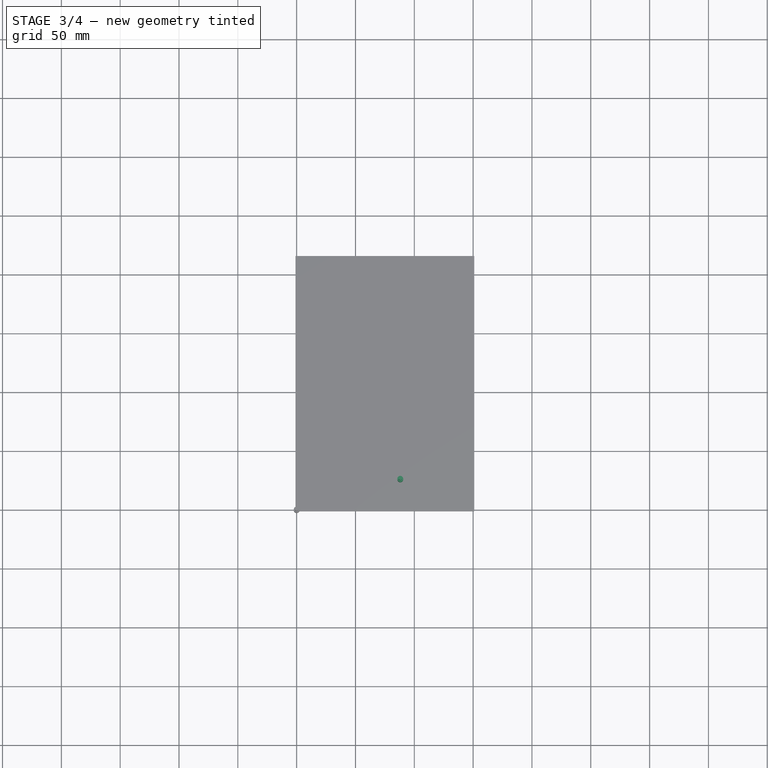
[diagram: stage 3 of 4 — top view after this stage's code; geometry added in this stage tinted green]
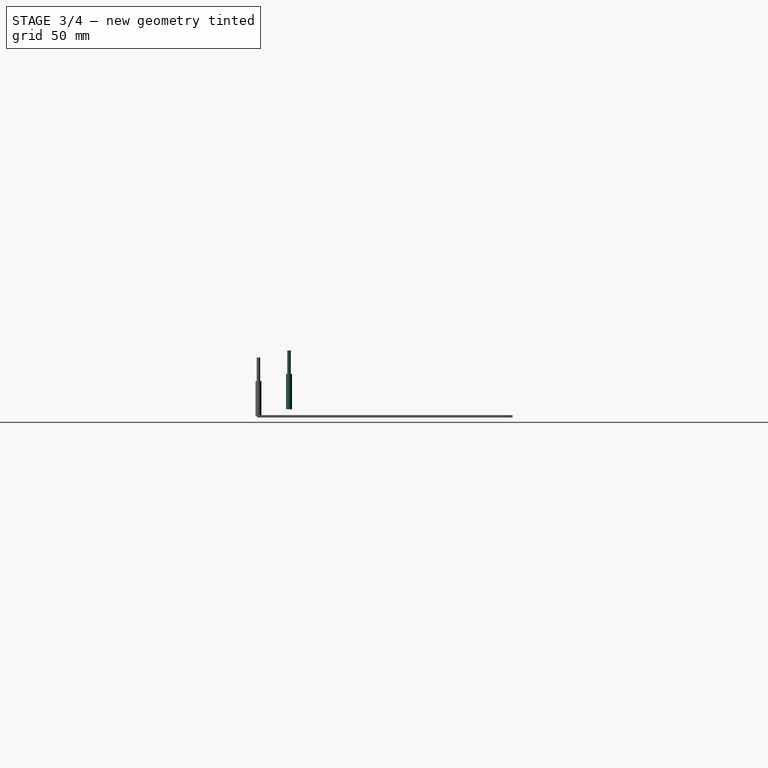
[diagram: stage 3 of 4 — right view after this stage's code; geometry added in this stage tinted green]
FEATURE [App::FeaturePython] SetupSheet001  # Path/CAM operation (typed FeaturePython)
  ClearanceHeightExpression = OpStockZMax+SetupSheet001.ClearanceHeightOffset
  ClearanceHeightOffset = 5
  CoolantMode = 0
  CoolantModes = None | Flood | Mist
  FinalDepthExpression = OpFinalDepth
  HorizRapid = 0
  SafeHeightExpression = OpStockZMax+SetupSheet001.SafeHeightOffset
  SafeHeightOffset = 3
  StartDepthExpression = OpStartDepth
  StepDownExpression = OpToolDiameter
  VertRapid = 0
FEATURE [Part::Part2DObjectPython] Clone2D001  label="Model-JoystickLayout4Way"  # Draft 2D object (typed FeaturePython)
  Fuse = false
  Objects = -> [Sketch003]
  PathResource = Model
  Scale = (1,1,1)
FEATURE [App::DocumentObjectGroup] Model001
  Group = -> [Clone2D001]
FEATURE [Part::FeaturePython] ToolBit001  label="Endmill001"  # Path/CAM toolbit (typed FeaturePython)
  BitPropertyNames = Chipload | CuttingEdgeHeight | Diameter | Flutes | Length | Material | ShankDiameter | SpindleDirection
  BitShape = <path> 0.20.0/Mod\Path\Tools\Shape\endmill.fcstd
  Chipload = 0
  CuttingEdgeHeight = 30
  Diameter = 5
  Flutes = 0
  Length = 50
  Material = 0
  ShankDiameter = 3
  ShapeName = endmill
  SpindleDirection = 0
FEATURE [Path::FeaturePython] Engrave  # Path/CAM operation (typed FeaturePython)
  Active = true
  ClearanceHeight = 6
  CoolantMode = 0
  CycleTime = Cycletime Error
  FinalDepth = -5
  OpFinalDepth = -5
  OpStartDepth = 0
  OpStockZMax = 1
  OpStockZMin = -1
  OpToolDiameter = 5
  SafeHeight = 4
  StartDepth = 0
  StartVertex = 0
  StepDown = 5
  ToolController = -> TC__Default_Tool
  expr: ClearanceHeight = OpStockZMax + SetupSheet.ClearanceHeightOffset
  expr: FinalDepth = OpFinalDepth
  expr: SafeHeight = OpStockZMax + SetupSheet.SafeHeightOffset
  expr: StartDepth = OpStartDepth
  expr: StepDown = OpToolDiameter
FEATURE [Path::FeaturePython] Engrave001  # Path/CAM operation (typed FeaturePython)
  Active = true
  ClearanceHeight = 6
  CoolantMode = 0
  CycleTime = Cycletime Error
  FinalDepth = -5
  OpFinalDepth = -5
  OpStartDepth = 0
  OpStockZMax = 1
  OpStockZMin = -1
  OpToolDiameter = 5
  SafeHeight = 4
  StartDepth = 0
  StartVertex = 0
  StepDown = 5
  ToolController = -> TC__Default_Tool001
  expr: ClearanceHeight = OpStockZMax + SetupSheet001.ClearanceHeightOffset
  expr: FinalDepth = OpFinalDepth
  expr: SafeHeight = OpStockZMax + SetupSheet001.SafeHeightOffset
  expr: StartDepth = OpStartDepth
  expr: StepDown = OpToolDiameter
FEATURE [App::DocumentObjectGroup] Operations001
  Group = -> [Engrave001]
FEATURE [Path::FeaturePython] Job001  label="JobJoystick"  # Path/CAM operation (typed FeaturePython)
  CycleTime = 00:00:00
  Fixtures = G54
  GeometryTolerance = 0.01
  JobType = 0
  Model = -> Model001
  Operations = -> Operations001
  OrderOutputBy = 0
  PostProcessor = 1
  SetupSheet = -> SetupSheet001
  SplitOutput = false
  Stock = -> Stock001
  Tools = -> Tools001
FEATURE [Sketcher::SketchObject] Sketch004  label="PCB"
  FullyConstrained = false
  MapMode = 2
  Support = -> [Pad]
  sketch-geometry (24):
    g0: LineSegment StartX=0 StartY=215 StartZ=0 EndX=150 EndY=215 EndZ=0
    g1: LineSegment StartX=150 StartY=215 StartZ=0 EndX=150 EndY=0 EndZ=0
    g2: LineSegment StartX=150 StartY=0 StartZ=0 EndX=0 EndY=0 EndZ=0
    g3: LineSegment StartX=0 StartY=0 StartZ=0 EndX=0 EndY=215 EndZ=0
    g4: LineSegment StartX=19.889 StartY=50.1883 StartZ=0 EndX=129.889 EndY=50.1883 EndZ=0
    g5: LineSegment StartX=129.889 StartY=50.1883 StartZ=0 EndX=129.889 EndY=5.18831 EndZ=0
    g6: LineSegment StartX=129.889 StartY=5.18831 StartZ=0 EndX=19.889 EndY=5.18831 EndZ=0
    g7: LineSegment StartX=19.889 StartY=5.18831 StartZ=0 EndX=19.889 EndY=50.1883 EndZ=0
    g8: LineSegment StartX=32.889 StartY=48.1883 StartZ=0 EndX=117.889 EndY=48.1883 EndZ=0
    g9: LineSegment StartX=117.889 StartY=48.1883 StartZ=0 EndX=117.889 EndY=13.1883 EndZ=0
    g10: LineSegment StartX=117.889 StartY=13.1883 StartZ=0 EndX=32.889 EndY=13.1883 EndZ=0
    g11: LineSegment StartX=32.889 StartY=13.1883 StartZ=0 EndX=32.889 EndY=48.1883 EndZ=0
    g12: LineSegment StartX=36.1717 StartY=45.4551 StartZ=0 EndX=116.172 EndY=45.4551 EndZ=0
    g13: LineSegment StartX=116.172 StartY=45.4551 StartZ=0 EndX=116.172 EndY=15.4551 EndZ=0
    g14: LineSegment StartX=116.172 StartY=15.4551 StartZ=0 EndX=36.1717 EndY=15.4551 EndZ=0
    g15: LineSegment StartX=36.1717 StartY=15.4551 StartZ=0 EndX=36.1717 EndY=45.4551 EndZ=0
    g16: Circle CenterX=36.1717 CenterY=45.4551 CenterZ=0 NormalX=0 NormalY=0 NormalZ=1 AngleXU=0 Radius=1
    g17: Circle CenterX=116.172 CenterY=45.4551 CenterZ=0 NormalX=0 NormalY=0 NormalZ=1 AngleXU=0 Radius=1
    g18: Circle CenterX=116.172 CenterY=15.4551 CenterZ=0 NormalX=0 NormalY=0 NormalZ=1 AngleXU=0 Radius=1
    g19: Circle CenterX=36.1717 CenterY=15.4551 CenterZ=0 NormalX=0 NormalY=0 NormalZ=1 AngleXU=0 Radius=1
    g20: Circle CenterX=25.022 CenterY=43.2888 CenterZ=0 NormalX=0 NormalY=0 NormalZ=1 AngleXU=0 Radius=2
    g21: Circle CenterX=125.022 CenterY=43.2888 CenterZ=0 NormalX=0 NormalY=0 NormalZ=1 AngleXU=0 Radius=2
    g22: Circle CenterX=25.022 CenterY=13.2888 CenterZ=0 NormalX=0 NormalY=0 NormalZ=1 AngleXU=0 Radius=2
    g23: Circle CenterX=125.022 CenterY=13.2888 CenterZ=0 NormalX=0 NormalY=0 NormalZ=1 AngleXU=0 Radius=2
  constraints (62):
    c: Coincident(g0,g1)
    c: Coincident(g1,g2)
    c: Coincident(g2,g3)
    c: Coincident(g3,g0)
    c: Horizontal(g0)
    c: Horizontal(g2)
    c: Vertical(g1)
    c: Vertical(g3)
    c: PointOnObject(g0,g-2)
    c: PointOnObject(g1,g-1)
    c: DistanceX(g0,g0) = 150
    c: DistanceY(g1,g1) = 215
    c: Coincident(g4,g5)
    c: Coincident(g5,g6)
    c: Coincident(g6,g7)
    c: Coincident(g7,g4)
    c: Horizontal(g4)
    c: Horizontal(g6)
    c: Vertical(g5)
    c: Vertical(g7)
    c: DistanceY(g7,g7) = 45
    c: DistanceX(g4,g4) = 110
    c: Coincident(g8,g9)
    c: Coincident(g9,g10)
    c: Coincident(g10,g11)
    c: Coincident(g11,g8)
    c: Horizontal(g8)
    c: Horizontal(g10)
    c: Vertical(g9)
    c: Vertical(g11)
    c: DistanceX(g8,g8) = 85
    c: DistanceY(g9,g9) = 35
    c: DistanceX(g9,g5) = 12
    c: DistanceY(g5,g9) = 8
    c: Coincident(g12,g13)
    c: Coincident(g13,g14)
    c: Coincident(g14,g15)
    c: Coincident(g15,g12)
    c: Horizontal(g12)
    c: Horizontal(g14)
    c: Vertical(g13)
    c: Vertical(g15)
    c: DistanceX(g12,g12) = 80
    c: DistanceY(g13,g13) = 30
    c: Coincident(g16,g12)
    c: Coincident(g17,g12)
    c: Coincident(g18,g13)
    c: Coincident(g19,g14)
    c: Equal(g19,g16)
    c: Equal(g16,g17)
    c: Equal(g17,g18)
    c: Diameter(g16) = 2
    c: Vertical(g23,g21)
    c: Vertical(g22,g20)
    c: Horizontal(g22,g23)
    c: Horizontal(g20,g21)
    c: Equal(g20,g22)
    c: Equal(g22,g23)
    c: Equal(g23,g21)
    c: Radius(g20) = 2
    c: DistanceY(g22,g20) = 30
    c: DistanceX(g22,g23) = 100
FEATURE [Sketcher::SketchObject] Sketch005  label="PCB Text"
  ExternalGeometry = -> [Sketch004]
  FullyConstrained = false
  MapMode = 2
  Support = -> [Sketch004]
  sketch-geometry (72):
    g0: LineSegment StartX=98.6717 StartY=5.64502 StartZ=0 EndX=104.172 EndY=5.64502 EndZ=0
    g1: LineSegment StartX=93.1717 StartY=5.64502 StartZ=0 EndX=98.6717 EndY=5.64502 EndZ=0
    g2: LineSegment StartX=98.6717 StartY=5.64502 StartZ=0 EndX=93.1717 EndY=5.64502 EndZ=0
    g3: LineSegment StartX=87.6717 StartY=5.64502 StartZ=0 EndX=93.1717 EndY=5.64502 EndZ=0
    g4: LineSegment StartX=93.1717 StartY=5.64502 StartZ=0 EndX=87.6717 EndY=5.64502 EndZ=0
    g5: LineSegment StartX=82.1717 StartY=5.64502 StartZ=0 EndX=87.6717 EndY=5.64502 EndZ=0
    g6: LineSegment StartX=87.6717 StartY=5.64502 StartZ=0 EndX=82.1717 EndY=5.64502 EndZ=0
    g7: LineSegment StartX=76.6717 StartY=5.64502 StartZ=0 EndX=82.1717 EndY=5.64502 EndZ=0
    g8: LineSegment StartX=82.1717 StartY=5.64502 StartZ=0 EndX=76.6717 EndY=5.64502 EndZ=0
    g9: LineSegment StartX=71.1717 StartY=5.64502 StartZ=0 EndX=76.6717 EndY=5.64502 EndZ=0
    g10: LineSegment StartX=76.6717 StartY=5.64502 StartZ=0 EndX=71.1717 EndY=5.64502 EndZ=0
    g11: LineSegment StartX=65.6717 StartY=5.64502 StartZ=0 EndX=71.1717 EndY=5.64502 EndZ=0
    g12: LineSegment StartX=71.1717 StartY=5.64502 StartZ=0 EndX=65.6717 EndY=5.64502 EndZ=0
    g13: LineSegment StartX=60.1717 StartY=5.64502 StartZ=0 EndX=65.6717 EndY=5.64502 EndZ=0
    g14: LineSegment StartX=65.6717 StartY=5.64502 StartZ=0 EndX=60.1717 EndY=5.64502 EndZ=0
    g15: LineSegment StartX=54.6717 StartY=5.64502 StartZ=0 EndX=60.1717 EndY=5.64502 EndZ=0
    g16: LineSegment StartX=60.1717 StartY=5.64502 StartZ=0 EndX=54.6717 EndY=5.64502 EndZ=0
    g17: LineSegment StartX=49.1717 StartY=5.64502 StartZ=0 EndX=54.6717 EndY=5.64502 EndZ=0
    g18: LineSegment StartX=54.6717 StartY=5.64502 StartZ=0 EndX=49.1717 EndY=5.64502 EndZ=0
    g19: LineSegment StartX=43.6717 StartY=5.64502 StartZ=0 EndX=49.1717 EndY=5.64502 EndZ=0
    g20: LineSegment StartX=49.1717 StartY=5.64502 StartZ=0 EndX=43.6717 EndY=5.64502 EndZ=0
    g21: LineSegment StartX=38.1717 StartY=5.64502 StartZ=0 EndX=43.6717 EndY=5.64502 EndZ=0
    g22: LineSegment StartX=43.6717 StartY=5.64502 StartZ=0 EndX=38.1717 EndY=5.64502 EndZ=0
    g23: LineSegment StartX=41.5055 StartY=9.30068 StartZ=0 EndX=41.5055 EndY=6.30804 EndZ=0
    g24: LineSegment StartX=41.5055 StartY=7.78638 StartZ=0 EndX=39.9912 EndY=9.15173 EndZ=0
    g25: LineSegment StartX=45.3037 StartY=9.37515 StartZ=0 EndX=45.3037 EndY=6.28963 EndZ=0
    g26: LineSegment StartX=45.3037 StartY=6.28963 StartZ=0 EndX=46.7435 EndY=6.5948 EndZ=0
    g27: LineSegment StartX=46.7435 StartY=6.5948 StartZ=0 EndX=45.3037 EndY=7.73673 EndZ=0
    g28: LineSegment StartX=45.3037 StartY=7.73673 StartZ=0 EndX=46.5946 EndY=8.48147 EndZ=0
    g29: LineSegment StartX=46.5946 StartY=8.48147 StartZ=0 EndX=45.3037 EndY=9.37515 EndZ=0
    g30: LineSegment StartX=50.151 StartY=6.14765 StartZ=0 EndX=51.4922 EndY=9.18801 EndZ=0
    g31: LineSegment StartX=51.4922 StartY=9.18801 StartZ=0 EndX=52.5028 EndY=6.5948 EndZ=0
    g32: LineSegment StartX=50.6658 StartY=7.31471 StartZ=0 EndX=51.5595 EndY=7.36436 EndZ=0
    g33: LineSegment StartX=55.6378 StartY=9.14944 StartZ=0 EndX=56.6557 EndY=7.51102 EndZ=0
    g34: LineSegment StartX=56.6557 StartY=7.51102 StartZ=0 EndX=55.9357 EndY=6.26979 EndZ=0
    g35: LineSegment StartX=57.7231 StartY=9.14944 StartZ=0 EndX=57.028 EndY=7.51102 EndZ=0
    g36: LineSegment StartX=57.028 StartY=7.51102 StartZ=0 EndX=57.8721 EndY=6.24496 EndZ=0
    g37: LineSegment StartX=61.5765 StartY=9.29725 StartZ=0 EndX=61.5765 EndY=5.986 EndZ=0
    g38: LineSegment StartX=61.5765 StartY=5.986 StartZ=0 EndX=62.5313 EndY=5.986 EndZ=0
    g39: LineSegment StartX=66.4917 StartY=9.27242 StartZ=0 EndX=66.4917 EndY=6.0204 EndZ=0
    g40: LineSegment StartX=66.4917 StartY=6.0204 StartZ=0 EndX=68.0613 EndY=6.0204 EndZ=0
    g41: LineSegment StartX=62.9915 StartY=8.47803 StartZ=0 EndX=62.9915 EndY=5.98636 EndZ=0
    g42: LineSegment StartX=63.3887 StartY=8.47803 StartZ=0 EndX=63.3887 EndY=5.98407 EndZ=0
    g43: LineSegment StartX=68.5025 StartY=8.39959 StartZ=0 EndX=68.5025 EndY=6.07005 EndZ=0
    g44: LineSegment StartX=72.7315 StartY=9.19566 StartZ=0 EndX=72.7315 EndY=6.02701 EndZ=0
    g45: LineSegment StartX=72.7315 StartY=9.19566 StartZ=0 EndX=73.9727 EndY=8.52539 EndZ=0
    g46: LineSegment StartX=73.9727 StartY=8.52539 StartZ=0 EndX=72.9053 EndY=7.55723 EndZ=0
    g47: LineSegment StartX=72.9053 StartY=7.55723 StartZ=0 EndX=74.1217 EndY=6.24153 EndZ=0
    g48: LineSegment StartX=74.8167 StartY=8.94741 StartZ=0 EndX=74.8167 EndY=6.01568 EndZ=0
    g49: LineSegment StartX=78.199 StartY=9.19522 StartZ=0 EndX=78.199 EndY=5.98636 EndZ=0
    g50: LineSegment StartX=78.199 StartY=9.19522 StartZ=0 EndX=79.3657 EndY=8.37601 EndZ=0
    g51: LineSegment StartX=79.3657 StartY=8.37601 StartZ=0 EndX=78.4224 EndY=7.60645 EndZ=0
    g52: LineSegment StartX=78.4224 StartY=7.60645 StartZ=0 EndX=79.3722 EndY=5.92538 EndZ=0
    g53: LineSegment StartX=79.9119 StartY=8.8725 StartZ=0 EndX=79.9119 EndY=5.92538 EndZ=0
    g54: LineSegment StartX=80.7807 StartY=8.7732 StartZ=0 EndX=80.7807 EndY=5.94571 EndZ=0
    g55: LineSegment StartX=84.2928 StartY=9.14345 StartZ=0 EndX=83.2501 EndY=7.95187 EndZ=0
    g56: LineSegment StartX=83.2501 StartY=7.95187 StartZ=0 EndX=84.6403 EndY=7.13266 EndZ=0
    g57: LineSegment StartX=84.6403 StartY=7.13266 StartZ=0 EndX=83.2005 EndY=5.91625 EndZ=0
    g58: LineSegment StartX=90.3003 StartY=9.0938 StartZ=0 EndX=88.7612 EndY=8.20012 EndZ=0
    g59: LineSegment StartX=88.7612 StartY=8.20012 StartZ=0 EndX=90.1762 EndY=7.28161 EndZ=0
    g60: LineSegment StartX=90.1762 StartY=7.28161 StartZ=0 EndX=88.9846 EndY=6.04038 EndZ=0
    g61: LineSegment StartX=90.5596 StartY=8.47319 StartZ=0 EndX=92.7332 EndY=8.47319 EndZ=0
    g62: LineSegment StartX=91.5664 StartY=8.47319 StartZ=0 EndX=91.5664 EndY=5.81363 EndZ=0
    g63: LineSegment StartX=86.2043 StartY=9.24275 StartZ=0 EndX=85.3602 EndY=7.75327 EndZ=0
    g64: LineSegment StartX=85.3602 StartY=7.75327 StartZ=0 EndX=86.0087 EndY=6.00233 EndZ=0
    g65: LineSegment StartX=85.3602 StartY=7.75327 StartZ=0 EndX=86.1546 EndY=7.75327 EndZ=0
    g66: LineSegment StartX=95.9355 StartY=9.01933 StartZ=0 EndX=94.3964 EndY=7.5795 EndZ=0
    g67: LineSegment StartX=94.3964 StartY=7.5795 StartZ=0 EndX=95.6572 EndY=5.92973 EndZ=0
    g68: LineSegment StartX=96.581 StartY=8.96968 StartZ=0 EndX=96.581 EndY=5.97966 EndZ=0
    g69: LineSegment StartX=100.801 StartY=9.01933 StartZ=0 EndX=100.801 EndY=5.87981 EndZ=0
    g70: LineSegment StartX=103.209 StartY=8.92003 StartZ=0 EndX=103.209 EndY=5.84653 EndZ=0
    g71: LineSegment StartX=100.801 StartY=7.5795 StartZ=0 EndX=103.209 EndY=7.5795 EndZ=0
  constraints (120):
    c: DistanceX(g0,g0) = 5.5
    c: Horizontal(g0)
    c: DistanceX(g1,g1) = 5.5
    c: Horizontal(g1)
    c: Coincident(g0,g2)
    c: Coincident(g1,g2)
    c: Distance(g2) = 5.5
    c: Angle(g2) = 3.14159
    c: DistanceX(g3,g3) = 5.5
    c: Horizontal(g3)
    c: Coincident(g1,g4)
    c: Coincident(g3,g4)
    c: Equal(g2,g4)
    c: Parallel(g4,g2)
    c: DistanceX(g5,g5) = 5.5
    c: Horizontal(g5)
    c: Coincident(g3,g6)
    c: Coincident(g5,g6)
    c: Equal(g2,g6)
    c: Parallel(g6,g2)
    c: DistanceX(g7,g7) = 5.5
    c: Horizontal(g7)
    c: Coincident(g5,g8)
    c: Coincident(g7,g8)
    c: Equal(g2,g8)
    c: Parallel(g8,g2)
    c: DistanceX(g9,g9) = 5.5
    c: Horizontal(g9)
    c: Coincident(g7,g10)
    c: Coincident(g9,g10)
    c: Equal(g2,g10)
    c: Parallel(g10,g2)
    c: DistanceX(g11,g11) = 5.5
    c: Horizontal(g11)
    c: Coincident(g9,g12)
    c: Coincident(g11,g12)
    c: Equal(g2,g12)
    c: Parallel(g12,g2)
    c: DistanceX(g13,g13) = 5.5
    c: Horizontal(g13)
    c: Coincident(g11,g14)
    c: Coincident(g13,g14)
    c: Equal(g2,g14)
    c: Parallel(g14,g2)
    c: DistanceX(g15,g15) = 5.5
    c: Horizontal(g15)
    c: Coincident(g13,g16)
    c: Coincident(g15,g16)
    c: Equal(g2,g16)
    c: Parallel(g16,g2)
    c: DistanceX(g17,g17) = 5.5
    c: Horizontal(g17)
    c: Coincident(g15,g18)
    c: Coincident(g17,g18)
    c: Equal(g2,g18)
    c: Parallel(g18,g2)
    c: DistanceX(g19,g19) = 5.5
    c: Horizontal(g19)
    c: Coincident(g17,g20)
    c: Coincident(g19,g20)
    c: Equal(g2,g20)
    c: Parallel(g20,g2)
    c: DistanceX(g21,g21) = 5.5
    c: Horizontal(g21)
    c: Coincident(g19,g22)
    c: Coincident(g21,g22)
    c: Equal(g2,g22)
    c: Parallel(g22,g2)
    c: DistanceX(g-3,g21) = 2
    c: Vertical(g23)
    c: PointOnObject(g24,g23)
    c: Vertical(g25)
    c: Coincident(g26,g25)
    c: Coincident(g27,g26)
    c: PointOnObject(g27,g25)
    c: Coincident(g28,g27)
    c: Coincident(g29,g28)
    c: Coincident(g29,g25)
    c: Coincident(g31,g30)
    c: PointOnObject(g32,g30)
    c: Coincident(g34,g33)
    c: Coincident(g36,g35)
    c: Horizontal(g35,g33)
    c: Coincident(g38,g37)
    c: Horizontal(g38)
    c: Vertical(g39)
    c: Coincident(g40,g39)
    c: Vertical(g41)
    c: Vertical(g43)
    c: Vertical(g44)
    c: Coincident(g45,g44)
    c: Coincident(g46,g45)
    c: Coincident(g47,g46)
    c: Vertical(g48)
    c: Vertical(g49)
    c: Coincident(g50,g49)
    c: Coincident(g51,g50)
    c: Coincident(g52,g51)
    c: Vertical(g53)
    c: Vertical(g54)
    c: Coincident(g56,g55)
    c: Coincident(g57,g56)
    c: Coincident(g59,g58)
    c: Coincident(g60,g59)
    c: Horizontal(g61)
    c: PointOnObject(g62,g61)
    c: Vertical(g62)
    c: Coincident(g64,g63)
    c: Coincident(g65,g63)
    c: Horizontal(g65)
    c: Coincident(g67,g66)
    c: Vertical(g68)
    c: Vertical(g69)
    c: Vertical(g70)
    c: PointOnObject(g71,g69)
    c: PointOnObject(g71,g70)
    c: Horizontal(g71)
    c: Vertical(g37)
    c: Horizontal(g40)
    c: Vertical(g42)
FEATURE [Sketcher::SketchObject] Sketch006  label="Ring"
  FullyConstrained = false
  MapMode = 2
  Support = -> [Sketch004]
  sketch-geometry (4):
    g0: Circle CenterX=28.0626 CenterY=26.3351 CenterZ=0 NormalX=0 NormalY=0 NormalZ=1 AngleXU=0 Radius=22.5
    g1: Circle CenterX=28.0626 CenterY=26.3351 CenterZ=0 NormalX=0 NormalY=0 NormalZ=1 AngleXU=0 Radius=5.5
    g2: Circle CenterX=82.5789 CenterY=26.005 CenterZ=0 NormalX=0 NormalY=0 NormalZ=1 AngleXU=0 Radius=22.5
    g3: Circle CenterX=82.5789 CenterY=26.005 CenterZ=0 NormalX=0 NormalY=0 NormalZ=1 AngleXU=0 Radius=5.5
  constraints (6):
    c: Coincident(g1,g0)
    c: Diameter(g1) = 11
    c: Diameter(g0) = 45
    c: Coincident(g3,g2)
    c: Equal(g1,g3) = 11
    c: Equal(g0,g2) = 45
FEATURE [Path::FeaturePython] Engrave002  # Path/CAM operation (typed FeaturePython)
  Active = true
  ClearanceHeight = 6
  CoolantMode = 0
  CycleTime = Cycletime Error
  FinalDepth = -5
  OpFinalDepth = -5
  OpStartDepth = 0
  OpStockZMax = 1
  OpStockZMin = -1
  OpToolDiameter = 5
  SafeHeight = 4
  StartDepth = 0
  StartVertex = 0
  StepDown = 5
  ToolController = -> TC__Default_Tool
  expr: ClearanceHeight = OpStockZMax + SetupSheet.ClearanceHeightOffset
  expr: FinalDepth = OpFinalDepth
  expr: SafeHeight = OpStockZMax + SetupSheet.SafeHeightOffset
  expr: StartDepth = OpStartDepth
  expr: StepDown = OpToolDiameter
FEATURE [Path::FeaturePython] Engrave003  # Path/CAM operation (typed FeaturePython)
  Active = true
  ClearanceHeight = 6
  CoolantMode = 0
  CycleTime = Cycletime Error
  FinalDepth = -5
  OpFinalDepth = -5
  OpStartDepth = 0
  OpStockZMax = 1
  OpStockZMin = -1
  OpToolDiameter = 5
  SafeHeight = 4
  StartDepth = 0
  StartVertex = 0
  StepDown = 5
  ToolController = -> TC__Default_Tool
  expr: ClearanceHeight = OpStockZMax + SetupSheet.ClearanceHeightOffset
  expr: FinalDepth = OpFinalDepth
  expr: SafeHeight = OpStockZMax + SetupSheet.SafeHeightOffset
  expr: StartDepth = OpStartDepth
  expr: StepDown = OpToolDiameter
FEATURE [App::FeaturePython] SetupSheet002  # Path/CAM operation (typed FeaturePython)
  ClearanceHeightExpression = OpStockZMax+SetupSheet002.ClearanceHeightOffset
  ClearanceHeightOffset = 5
  CoolantMode = 0
  CoolantModes = None | Flood | Mist
  FinalDepthExpression = OpFinalDepth
  HorizRapid = 0
  SafeHeightExpression = OpStockZMax+SetupSheet002.SafeHeightOffset
  SafeHeightOffset = 3
  StartDepthExpression = OpStartDepth
  StepDownExpression = OpToolDiameter
  VertRapid = 0
FEATURE [Part::Part2DObjectPython] Clone2D002  label="Model-Ring"  # Draft 2D object (typed FeaturePython)
  Fuse = false
  Objects = -> [Sketch006]
  PathResource = Model
  Scale = (1,1,1)
FEATURE [App::DocumentObjectGroup] Model002
  Group = -> [Clone2D002]
FEATURE [Part::FeaturePython] ToolBit002  label="Endmill002"  # Path/CAM toolbit (typed FeaturePython)
  BitPropertyNames = Chipload | CuttingEdgeHeight | Diameter | Flutes | Length | Material | ShankDiameter | SpindleDirection
  BitShape = <path> 0.20.0/Mod\Path\Tools\Shape\endmill.fcstd
  Chipload = 0
  CuttingEdgeHeight = 30
  Diameter = 5
  Flutes = 0
  Length = 50
  Material = 0
  Placement = pos=(88.0789,26.005,6) rot=(0,0,1;0rad)
  ShankDiameter = 3
  ShapeName = endmill
  SpindleDirection = 0
FEATURE [Path::FeaturePython] TC__Default_Tool002  label="TC: Default Tool002"  # Path/CAM operation (typed FeaturePython)
  HorizFeed = 0
  HorizRapid = 0
  SpindleDir = 0
  SpindleSpeed = 0
  Tool = -> ToolBit002
  ToolNumber = 1
  VertFeed = 0
  VertRapid = 0
  expr: HorizRapid = SetupSheet002.HorizRapid
  expr: VertRapid = SetupSheet002.VertRapid
FEATURE [App::DocumentObjectGroup] Tools002
  Group = -> [TC__Default_Tool002]
FEATURE [Part::FeaturePython] Stock002  # WARN: FeaturePython — macro-defined, semantics opaque (R4)
  Base = -> Model002
  ExtXneg = 1
  ExtXpos = 1
  ExtYneg = 1
  ExtYpos = 1
  ExtZneg = 1
  ExtZpos = 1
  Placement = pos=(5.67802,3.53384,0) rot=(0,0,1;0rad)
  StockType = FromBase
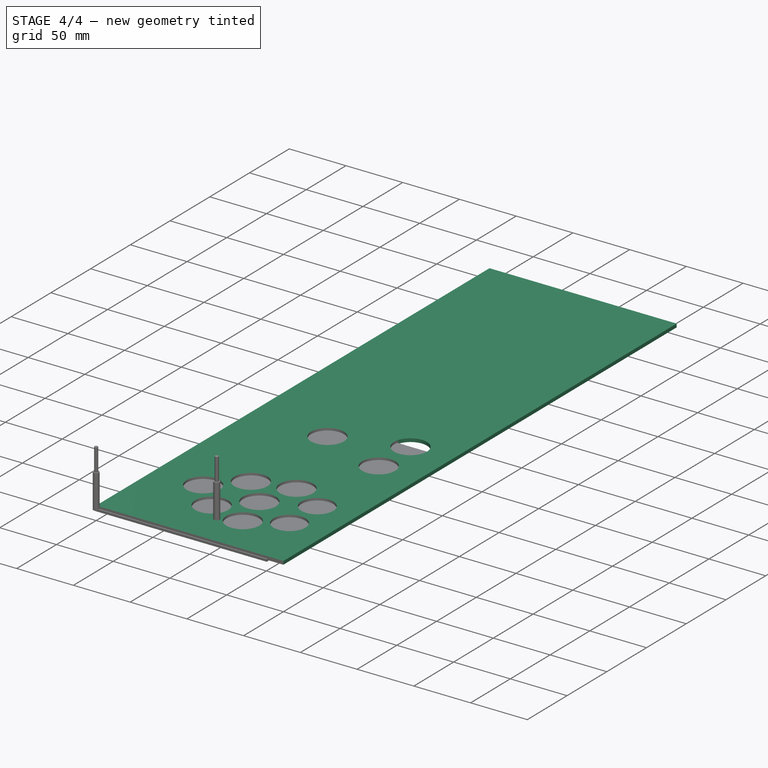
[diagram: stage 4 of 4 — iso view after this stage's code; geometry added in this stage tinted green]
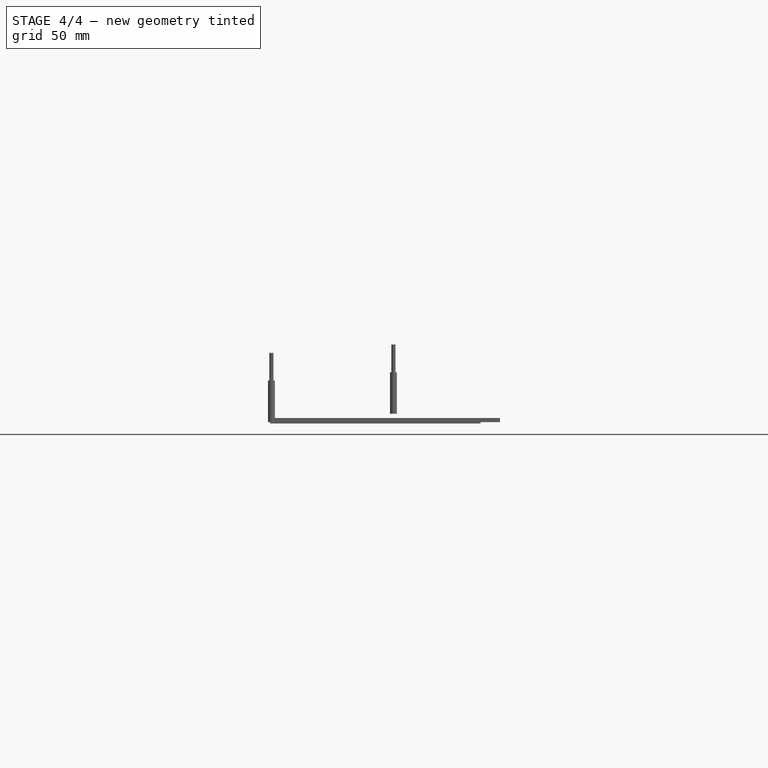
[diagram: stage 4 of 4 — front view after this stage's code; geometry added in this stage tinted green]
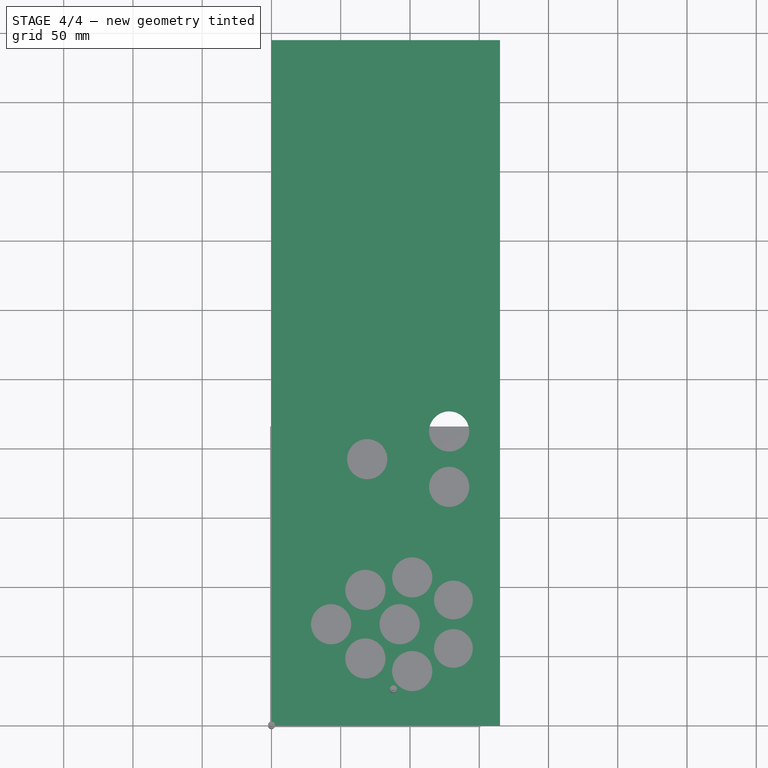
[diagram: stage 4 of 4 — top view after this stage's code; geometry added in this stage tinted green]
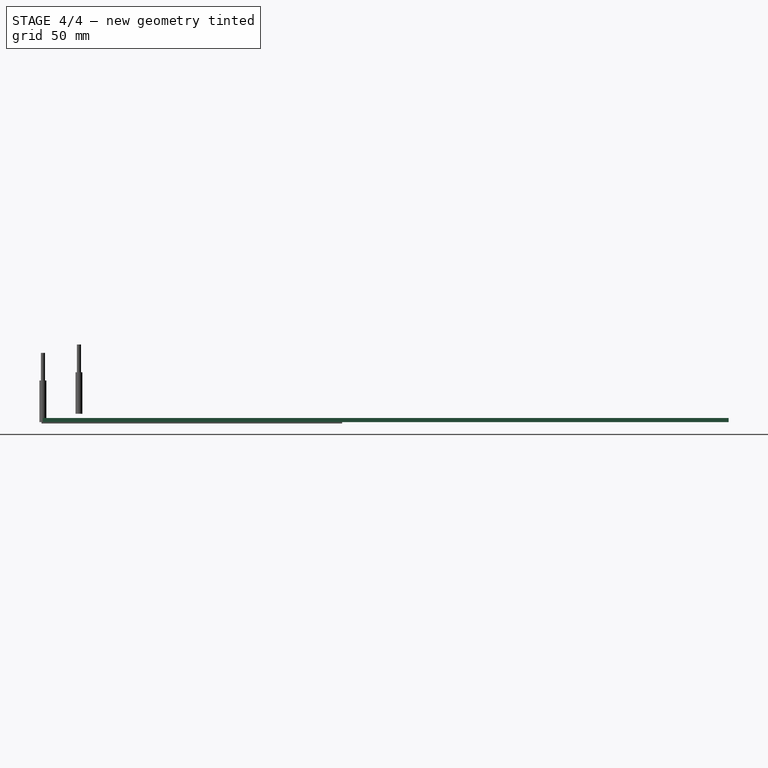
[diagram: stage 4 of 4 — right view after this stage's code; geometry added in this stage tinted green]
FEATURE [Sketcher::SketchObject] Sketch001
  FullyConstrained = false
  MapMode = 5
  Placement = pos=(0,0,3) rot=(0,0,1;0rad)
  Support = -> [Pad]
  sketch-geometry (38):
    g0: LineSegment StartX=25 StartY=0 StartZ=0 EndX=0 EndY=0 EndZ=0
    g1: LineSegment StartX=165 StartY=0 StartZ=0 EndX=25 EndY=0 EndZ=0
    g2: Circle CenterX=69.129 CenterY=192.435 CenterZ=0 NormalX=0 NormalY=0 NormalZ=1 AngleXU=0 Radius=14.5
    g3: Circle CenterX=43.0634 CenterY=73.2616 CenterZ=0 NormalX=0 NormalY=0 NormalZ=1 AngleXU=0 Radius=14.5
    g4: Circle CenterX=67.8121 CenterY=98.0103 CenterZ=0 NormalX=0 NormalY=0 NormalZ=1 AngleXU=0 Radius=14.5
    g5: Circle CenterX=67.8121 CenterY=48.5129 CenterZ=0 NormalX=0 NormalY=0 NormalZ=1 AngleXU=0 Radius=14.5
    g6: Circle CenterX=92.5609 CenterY=73.2616 CenterZ=0 NormalX=0 NormalY=0 NormalZ=1 AngleXU=0 Radius=14.5
    g7: Circle CenterX=101.62 CenterY=107.069 CenterZ=0 NormalX=0 NormalY=0 NormalZ=1 AngleXU=0 Radius=14.5
    g8: Circle CenterX=101.62 CenterY=39.4542 CenterZ=0 NormalX=0 NormalY=0 NormalZ=1 AngleXU=0 Radius=14.5
    g9: LineSegment StartX=43.0634 StartY=73.2616 StartZ=0 EndX=67.8121 EndY=98.0103 EndZ=0
    g10: LineSegment StartX=67.8121 StartY=98.0103 StartZ=0 EndX=101.62 EndY=107.069 EndZ=0
    g11: LineSegment StartX=101.62 StartY=107.069 StartZ=0 EndX=92.5609 EndY=73.2616 EndZ=0
    g12: LineSegment StartX=92.5609 StartY=73.2616 StartZ=0 EndX=67.8121 EndY=98.0103 EndZ=0
    g13: LineSegment StartX=92.5609 StartY=73.2616 StartZ=0 EndX=67.8121 EndY=48.5129 EndZ=0
    g14: LineSegment StartX=67.8121 StartY=48.5129 StartZ=0 EndX=43.0634 EndY=73.2616 EndZ=0
    g15: LineSegment StartX=67.8121 StartY=48.5129 StartZ=0 EndX=101.62 EndY=39.4542 EndZ=0
    g16: LineSegment StartX=101.62 StartY=39.4542 StartZ=0 EndX=92.5609 EndY=73.2616 EndZ=0
    g17: LineSegment StartX=67.8121 StartY=48.5129 StartZ=0 EndX=67.8121 EndY=98.0103 EndZ=0
    g18: Circle CenterX=128.286 CenterY=172.435 CenterZ=0 NormalX=0 NormalY=0 NormalZ=1 AngleXU=0 Radius=14.5
    g19: Circle CenterX=128.286 CenterY=212.435 CenterZ=0 NormalX=0 NormalY=0 NormalZ=1 AngleXU=0 Radius=14.5
    g20: Circle CenterX=131.362 CenterY=90.7616 CenterZ=0 NormalX=0 NormalY=0 NormalZ=1 AngleXU=0 Radius=14
    g21: Circle CenterX=131.362 CenterY=55.7616 CenterZ=0 NormalX=0 NormalY=0 NormalZ=1 AngleXU=0 Radius=14
    g22: LineSegment StartX=131.362 StartY=55.7616 StartZ=0 EndX=131.362 EndY=90.7616 EndZ=0
    g23: LineSegment StartX=128.286 StartY=172.435 StartZ=0 EndX=69.129 EndY=192.435 EndZ=0
    g24: LineSegment StartX=69.129 StartY=192.435 StartZ=0 EndX=128.286 EndY=212.435 EndZ=0
    g25: LineSegment StartX=43.0634 StartY=73.2616 StartZ=0 EndX=92.5609 EndY=73.2616 EndZ=0
    g26: LineSegment StartX=42.129 StartY=239.935 StartZ=0 EndX=96.129 EndY=239.935 EndZ=0
    g27: LineSegment StartX=96.129 StartY=239.935 StartZ=0 EndX=96.129 EndY=144.935 EndZ=0
    g28: LineSegment StartX=96.129 StartY=144.935 StartZ=0 EndX=42.129 EndY=144.935 EndZ=0
    g29: LineSegment StartX=42.129 StartY=144.935 StartZ=0 EndX=42.129 EndY=239.935 EndZ=0
    g30: LineSegment StartX=96.129 StartY=144.935 StartZ=0 EndX=69.129 EndY=192.435 EndZ=0
    g31: LineSegment StartX=69.129 StartY=192.435 StartZ=0 EndX=42.129 EndY=239.935 EndZ=0
    g32: LineSegment StartX=101.62 StartY=39.4542 StartZ=0 EndX=131.362 EndY=55.7616 EndZ=0
    g33: LineSegment StartX=131.362 StartY=90.7616 StartZ=0 EndX=101.62 EndY=107.069 EndZ=0
    g34: LineSegment StartX=128.286 StartY=172.435 StartZ=0 EndX=128.286 EndY=192.435 EndZ=0
    g35: LineSegment StartX=128.286 StartY=192.435 StartZ=0 EndX=128.286 EndY=212.435 EndZ=0
    g36: Circle CenterX=128.286 CenterY=192.435 CenterZ=0 NormalX=0 NormalY=0 NormalZ=1 AngleXU=0 Radius=14
    g37: LineSegment StartX=92.5609 StartY=73.2616 StartZ=0 EndX=131.362 EndY=73.2616 EndZ=0
  constraints (87):
    c: Horizontal(g0)
    c: PointOnObject(g0,g-1)
    c: Horizontal(g1)
    c: PointOnObject(g1,g-1)
    c: Equal(g3,g4)
    c: Equal(g4,g6)
    c: Equal(g6,g7)
    c: Equal(g7,g5)
    c: Equal(g6,g8)
    c: Diameter(g3) = 29
    c: Coincident(g9,g3)
    c: Coincident(g9,g4)
    c: Coincident(g10,g4)
    c: Coincident(g10,g7)
    c: Coincident(g11,g7)
    c: Coincident(g11,g6)
    c: Coincident(g12,g6)
    c: Coincident(g12,g4)
    c: Coincident(g13,g6)
    c: Coincident(g13,g5)
    c: Coincident(g14,g5)
    c: Coincident(g14,g3)
    c: Coincident(g15,g5)
    c: Coincident(g15,g8)
    c: Coincident(g16,g8)
    c: Coincident(g16,g6)
    c: Equal(g10,g11)
    c: Equal(g11,g12)
    c: Equal(g12,g9)
    c: Equal(g9,g14)
    c: Equal(g14,g13)
    c: Equal(g13,g15)
    c: Equal(g15,g16)
    c: Coincident(g17,g5)
    c: Coincident(g17,g4)
    c: Distance(g9) = 35
    c: Equal(g7,g19)
    c: Equal(g19,g18)
    c: Diameter(g20) = 28
    c: Equal(g20,g21)
    c: Coincident(g22,g21)
    c: Coincident(g22,g20)
    c: Vertical(g22)
    c: Vertical(g17)
    c: Coincident(g23,g18)
    c: Coincident(g23,g2)
    c: Coincident(g24,g2)
    c: Coincident(g24,g19)
    c: Equal(g23,g24)
    c: Equal(g19,g2)
    c: Coincident(g25,g3)
    c: Coincident(g25,g6)
    c: Coincident(g26,g27)
    c: Coincident(g27,g28)
    c: Coincident(g28,g29)
    c: Coincident(g29,g26)
    c: Horizontal(g26)
    c: Horizontal(g28)
    c: Vertical(g27)
    c: Vertical(g29)
    c: DistanceX(g26,g26) = 54
    c: DistanceY(g29,g29) = 95
    c: Coincident(g30,g27)
    c: Coincident(g30,g2)
    c: Coincident(g31,g2)
    c: Coincident(g31,g26)
    c: Equal(g31,g30)
    c: Parallel(g30,g31)
    c: Equal(g25,g17)
    c: Coincident(g32,g8)
    c: Coincident(g32,g21)
    c: Coincident(g33,g20)
    c: Coincident(g33,g7)
    c: DistanceY(g22,g22) = 35
    c: Coincident(g34,g18)
    c: Coincident(g35,g19)
    c: Vertical(g34)
    c: Equal(g34,g35)
    c: Parallel(g34,g35)
    c: Coincident(g36,g34)
    c: Diameter(g36) = 28
    c: Coincident(g36,g35)
    c: Coincident(g37,g6)
    c: PointOnObject(g37,g22)
    c: Horizontal(g37)
    c: Equal(g32,g33)
    c: DistanceY(g35,g35) = 20
FEATURE [PartDesign::Pocket] Pocket
  BaseFeature = -> Pad
  Direction = (0,0,-1)
  Length = 5
  Length2 = 5
  Profile = -> Sketch001
  ReferenceAxis = -> Sketch001 [N_Axis]
  Type = 1
FEATURE [Path::FeaturePython] TC__Default_Tool  label="TC: Default Tool"  # Path/CAM operation (typed FeaturePython)
  HorizFeed = 0
  HorizRapid = 0
  SpindleDir = 0
  SpindleSpeed = 0
  Tool = -> ToolBit
  ToolNumber = 1
  VertFeed = 0
  VertRapid = 0
  expr: HorizRapid = SetupSheet.HorizRapid
  expr: VertRapid = SetupSheet.VertRapid
FEATURE [App::DocumentObjectGroup] Tools
  Group = -> [TC__Default_Tool]
FEATURE [Part::FeaturePython] Stock  # WARN: FeaturePython — macro-defined, semantics opaque (R4)
  Base = -> Model
  ExtXneg = 1
  ExtXpos = 1
  ExtYneg = 1
  ExtYpos = 1
  ExtZneg = 1
  ExtZpos = 1
  Placement = pos=(-1.9e-15,0,0) rot=(0,0,1;0rad)
  StockType = FromBase
FEATURE [Path::FeaturePython] TC__Default_Tool001  label="TC: Default Tool001"  # Path/CAM operation (typed FeaturePython)
  HorizFeed = 0
  HorizRapid = 0
  SpindleDir = 0
  SpindleSpeed = 0
  Tool = -> ToolBit001
  ToolNumber = 1
  VertFeed = 0
  VertRapid = 0
  expr: HorizRapid = SetupSheet001.HorizRapid
  expr: VertRapid = SetupSheet001.VertRapid
FEATURE [App::DocumentObjectGroup] Tools001
  Group = -> [TC__Default_Tool001]
FEATURE [Part::FeaturePython] Stock001  # WARN: FeaturePython — macro-defined, semantics opaque (R4)
  Base = -> Model001
  ExtXneg = 1
  ExtXpos = 1
  ExtYneg = 1
  ExtYpos = 1
  ExtZneg = 1
  ExtZpos = 1
  Placement = pos=(4.97493,4.91775,0) rot=(0,0,1;0rad)
  StockType = FromBase
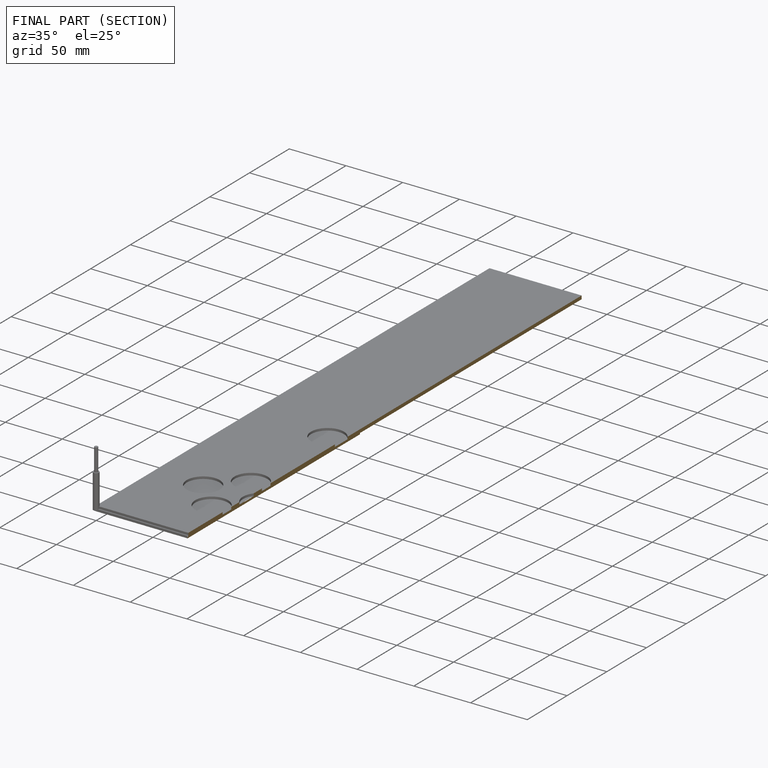
[diagram: finished part — half-section view (interior)]
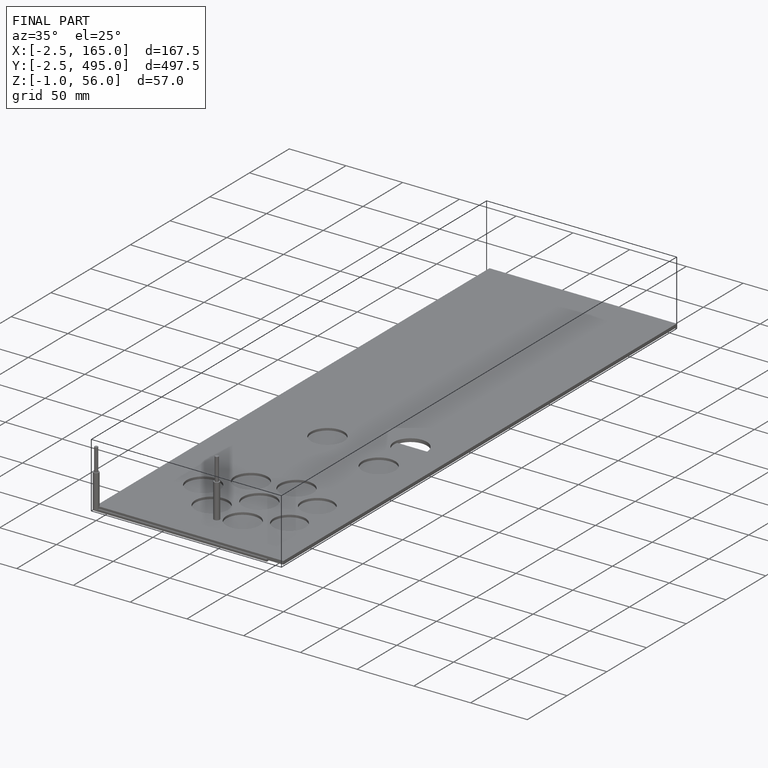
[diagram: finished part — iso view with bounding-box wireframe]
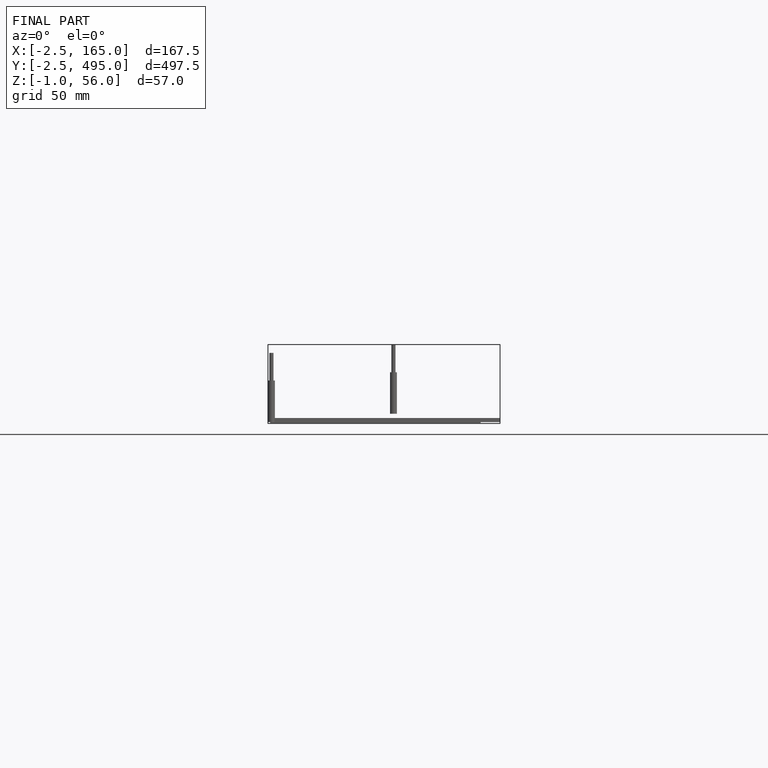
[diagram: finished part — front view with bounding-box wireframe]
